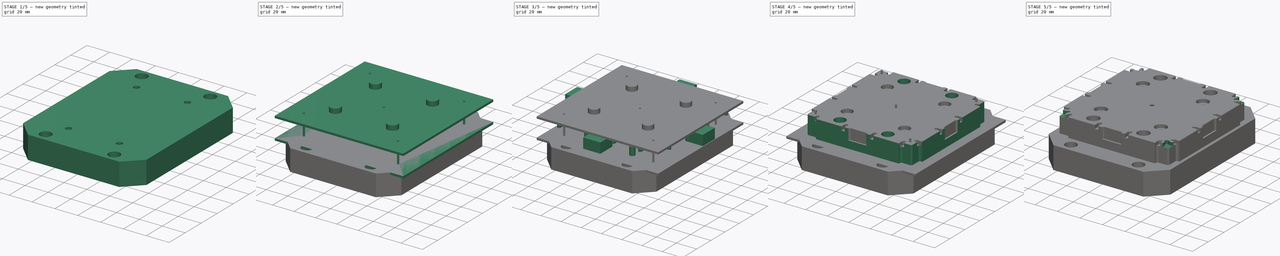
[diagram: build sequence overview — one tinted view per stage of 5, left to right]
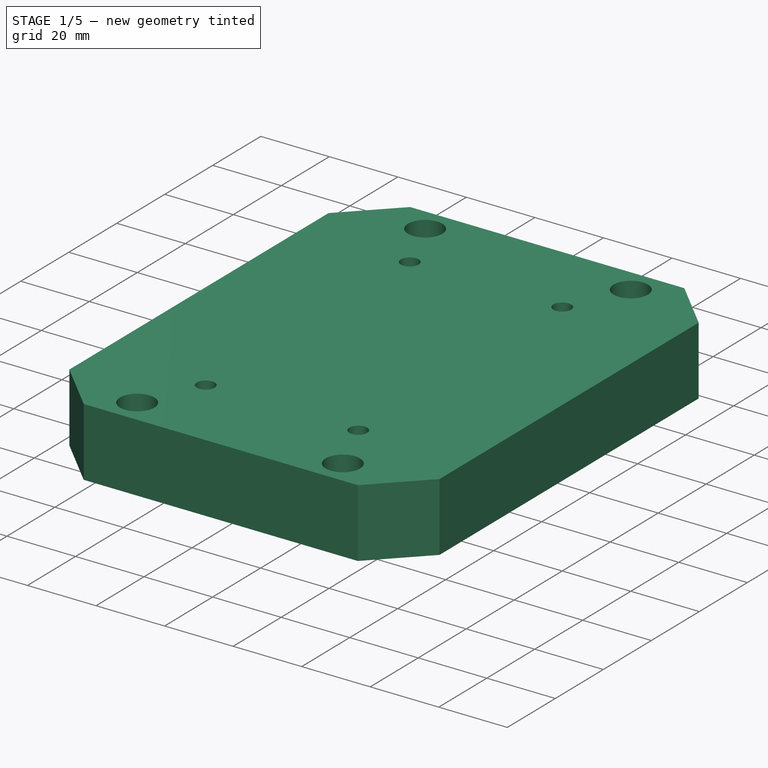
[diagram: stage 1 of 5 — iso view after this stage's code; geometry added in this stage tinted green]
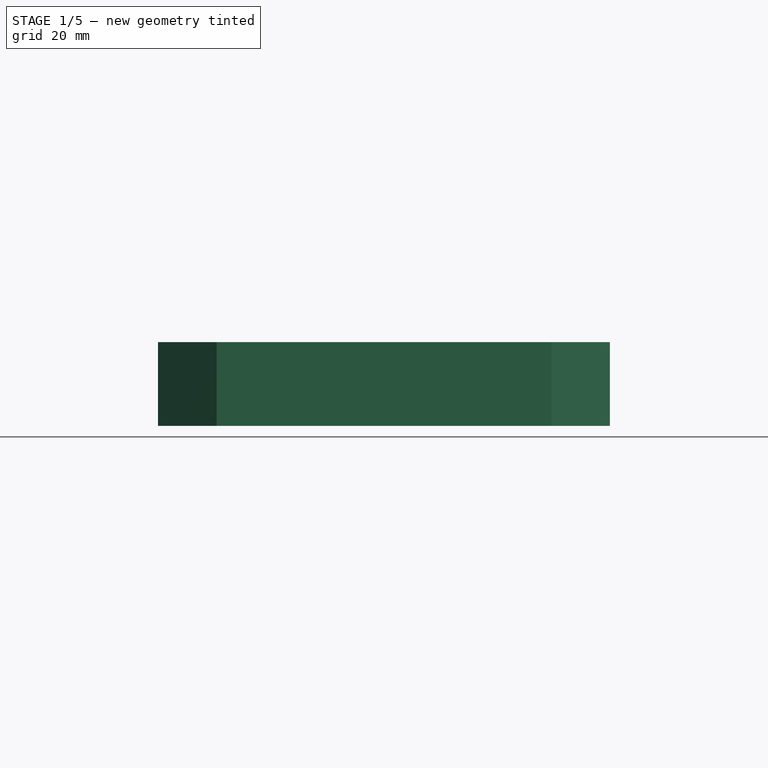
[diagram: stage 1 of 5 — front view after this stage's code; geometry added in this stage tinted green]
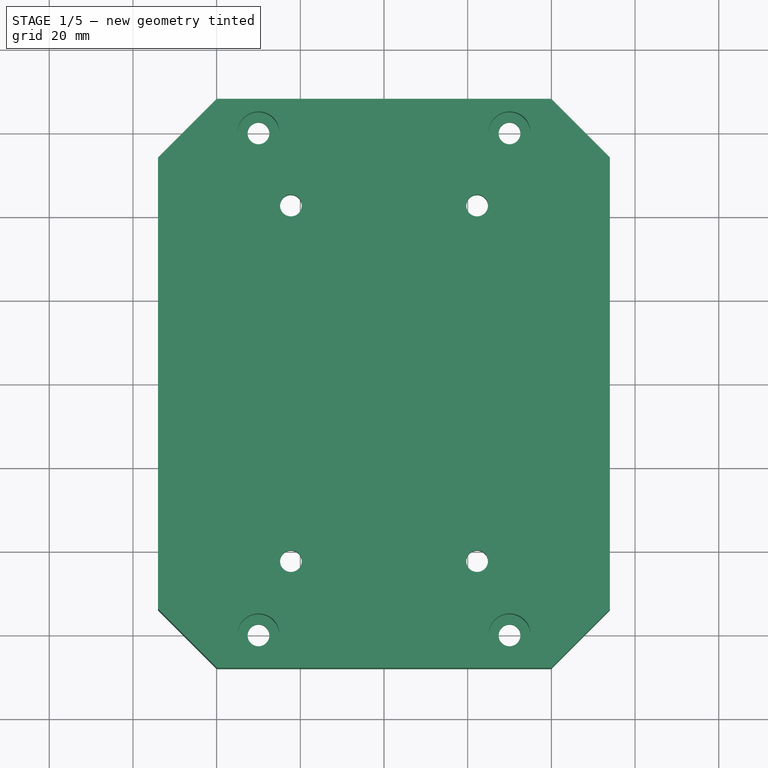
[diagram: stage 1 of 5 — top view after this stage's code; geometry added in this stage tinted green]
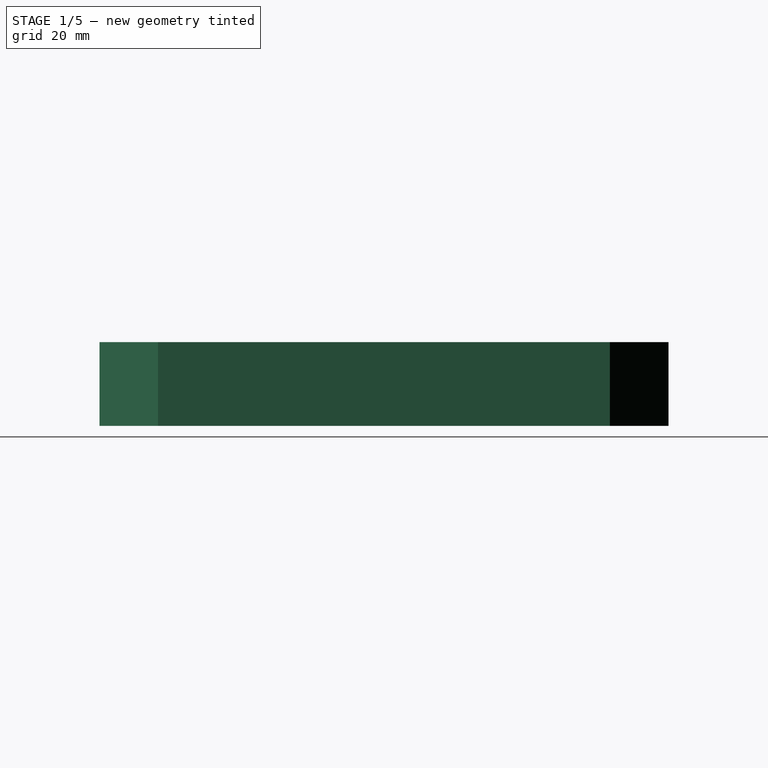
[diagram: stage 1 of 5 — right view after this stage's code; geometry added in this stage tinted green]
FCSTD DOCUMENT  (FreeCAD 0.19R24276 (Git))
Label: routing_template_alu_cnc
License: All rights reserved
LicenseURL: http://en.wikipedia.org/wiki/All_rights_reserved
objects: Sketcher::SketchObject×20, PartDesign::Pad×16, PartDesign::Body×8, PartDesign::Boolean×6, PartDesign::PolarPattern×3, PartDesign::Hole×2, PartDesign::Pocket×2, App::VRMLObject×1, App::Part×1, PartDesign::Chamfer×1, PartDesign::Fillet×1
note: 81 computed .brp shape members not serialized (recipe doc carries the construction recipe); baked Part::Feature solids carry a one-line shape summary decoded from their .brp

FEATURE [PartDesign::Body] Body  label="Base"
  Group = -> [Sketch001,Pad,Boolean,Boolean003,Boolean004,Boolean006,Boolean007,Boolean008,Chamfer]
  Origin = -> Origin
  Tip = -> Chamfer
FEATURE [Sketcher::SketchObject] Sketch019
  FullyConstrained = true
  MapMode = 5
  Support = -> [XY_Plane008]
  sketch-geometry (13):
    g0: LineSegment StartX=54 StartY=54 StartZ=0 EndX=54 EndY=-54 EndZ=0
    g1: LineSegment StartX=-54 StartY=-54 StartZ=0 EndX=-54 EndY=54 EndZ=0
    g2: LineSegment StartX=-54 StartY=54 StartZ=0 EndX=-40 EndY=68 EndZ=0
    g3: LineSegment StartX=-40 StartY=68 StartZ=0 EndX=40 EndY=68 EndZ=0
    g4: LineSegment StartX=40 StartY=68 StartZ=0 EndX=54 EndY=54 EndZ=0
    g5: LineSegment StartX=-54 StartY=-54 StartZ=0 EndX=-40 EndY=-68 EndZ=0
    g6: LineSegment StartX=-40 StartY=-68 StartZ=0 EndX=40 EndY=-68 EndZ=0
    g7: LineSegment StartX=40 StartY=-68 StartZ=0 EndX=54 EndY=-54 EndZ=0
    g8: LineSegment StartX=-54 StartY=54 StartZ=0 EndX=54 EndY=54 EndZ=0
    g9: LineSegment StartX=-54 StartY=-54 StartZ=0 EndX=54 EndY=-54 EndZ=0
    g10: LineSegment StartX=0 StartY=0 StartZ=0 EndX=-54 EndY=54 EndZ=0
    g11: LineSegment StartX=0 StartY=0 StartZ=0 EndX=54 EndY=54 EndZ=0
    g12: LineSegment StartX=0 StartY=0 StartZ=0 EndX=-54 EndY=-54 EndZ=0
  constraints (34):
    c: Vertical(g0)
    c: Vertical(g1)
    c: Coincident(g2,g1)
    c: Coincident(g2,g3)
    c: Horizontal(g3)
    c: Coincident(g3,g4)
    c: Coincident(g4,g0)
    c: Coincident(g1,g5)
    c: Coincident(g5,g6)
    c: Horizontal(g6)
    c: Coincident(g6,g7)
    c: Coincident(g7,g0)
    c: Coincident(g8,g1)
    c: Coincident(g8,g0)
    c: Horizontal(g8)
    c: Coincident(g9,g1)
    c: Coincident(g9,g0)
    c: Horizontal(g9)
    c: Coincident(g10,g-1)
    c: Coincident(g10,g1)
    c: Coincident(g11,g-1)
    c: Coincident(g11,g0)
    c: Coincident(g12,g-1)
    c: Coincident(g12,g1)
    c: Equal(g12,g10)
    c: Equal(g10,g11)
    c: Equal(g2,g4)
    c: Equal(g4,g5)
    c: Equal(g5,g7)
    c: Equal(g6,g3)
    c: DistanceX(g8,g8) = 108
    c: DistanceY(g1,g1) = 108
    c: DistanceY(g5,g2) = 136
    c: DistanceX(g3,g3) = 80
FEATURE [PartDesign::Pad] Pad016
  Direction = (1,1,1)
  Length = 20
  Length2 = 100
  Profile = -> Sketch019
  Reversed = true
  Type = 0
FEATURE [Sketcher::SketchObject] Sketch020
  FullyConstrained = true
  MapMode = 5
  Support = -> [XY_Plane008]
  sketch-geometry (11):
    g0: LineSegment StartX=-30 StartY=60 StartZ=0 EndX=30 EndY=60 EndZ=0
    g1: LineSegment StartX=30 StartY=60 StartZ=0 EndX=30 EndY=-60 EndZ=0
    g2: LineSegment StartX=30 StartY=-60 StartZ=0 EndX=-30 EndY=-60 EndZ=0
    g3: LineSegment StartX=-30 StartY=-60 StartZ=0 EndX=-30 EndY=60 EndZ=0
    g4: LineSegment StartX=-30 StartY=-60 StartZ=0 EndX=0 EndY=0 EndZ=0
    g5: LineSegment StartX=0 StartY=0 StartZ=0 EndX=-30 EndY=60 EndZ=0
    g6: LineSegment StartX=30 StartY=60 StartZ=0 EndX=0 EndY=0 EndZ=0
    g7: Circle CenterX=-30 CenterY=60 CenterZ=0 NormalX=0 NormalY=0 NormalZ=1 AngleXU=0 Radius=2
    g8: Circle CenterX=30 CenterY=60 CenterZ=0 NormalX=0 NormalY=0 NormalZ=1 AngleXU=0 Radius=2
    g9: Circle CenterX=30 CenterY=-60 CenterZ=0 NormalX=0 NormalY=0 NormalZ=1 AngleXU=0 Radius=2
    g10: Circle CenterX=-30 CenterY=-60 CenterZ=0 NormalX=0 NormalY=0 NormalZ=1 AngleXU=0 Radius=2
  constraints (26):
    c: Coincident(g0,g1)
    c: Coincident(g1,g2)
    c: Coincident(g2,g3)
    c: Coincident(g3,g0)
    c: Horizontal(g0)
    c: Horizontal(g2)
    c: Vertical(g1)
    c: Vertical(g3)
    c: Coincident(g2,g4)
    c: Coincident(g4,g-1)
    c: Coincident(g4,g5)
    c: Coincident(g5,g0)
    c: Coincident(g0,g6)
    c: Coincident(g6,g-1)
    c: Equal(g6,g5)
    c: Equal(g5,g4)
    c: DistanceX(g2,g2) = 60
    c: DistanceY(g3,g3) = 120
    c: Coincident(g0,g7)
    c: Coincident(g8,g0)
    c: Coincident(g9,g1)
    c: Coincident(g10,g2)
    c: Diameter(g10) = 4
    c: Equal(g10,g9)
    c: Equal(g10,g8)
    c: Equal(g10,g7)
FEATURE [PartDesign::Hole] Hole
  BaseFeature = -> Pad016
  Depth = 25
  DepthType = 0
  Diameter = 5.2
  DrillForDepth = false
  DrillPoint = 1
  DrillPointAngle = 118
  HoleCutCountersinkAngle = 90
  HoleCutCustomValues = false
  HoleCutDepth = 15
  HoleCutDiameter = 10
  HoleCutType = 1
  ModelActualThread = false
  Profile = -> Sketch020
  Tapered = false
  TaperedAngle = 90
  ThreadAngle = 0
  ThreadClass = 0
  ThreadCutOffInner = 0
  ThreadCutOffOuter = 0
  ThreadDirection = 0
  ThreadFit = 0
  ThreadPitch = 0
  ThreadSize = 0
  ThreadType = 0
  Threaded = false
FEATURE [Sketcher::SketchObject] Sketch021
  FullyConstrained = true
  MapMode = 5
  Support = -> [XY_Plane008]
  sketch-geometry (11):
    g0: LineSegment StartX=-22.25 StartY=42.5 StartZ=0 EndX=22.25 EndY=42.5 EndZ=0
    g1: LineSegment StartX=22.25 StartY=42.5 StartZ=0 EndX=22.25 EndY=-42.5 EndZ=0
    g2: LineSegment StartX=22.25 StartY=-42.5 StartZ=0 EndX=-22.25 EndY=-42.5 EndZ=0
    g3: LineSegment StartX=-22.25 StartY=-42.5 StartZ=0 EndX=-22.25 EndY=42.5 EndZ=0
    g4: LineSegment StartX=-22.25 StartY=-42.5 StartZ=0 EndX=0 EndY=0 EndZ=0
    g5: LineSegment StartX=0 StartY=0 StartZ=0 EndX=-22.25 EndY=42.5 EndZ=0
    g6: LineSegment StartX=22.25 StartY=42.5 StartZ=0 EndX=0 EndY=0 EndZ=0
    g7: Circle CenterX=-22.25 CenterY=42.5 CenterZ=0 NormalX=0 NormalY=0 NormalZ=1 AngleXU=0 Radius=2
    g8: Circle CenterX=22.25 CenterY=42.5 CenterZ=0 NormalX=0 NormalY=0 NormalZ=1 AngleXU=0 Radius=2
    g9: Circle CenterX=22.25 CenterY=-42.5 CenterZ=0 NormalX=0 NormalY=0 NormalZ=1 AngleXU=0 Radius=2
    g10: Circle CenterX=-22.25 CenterY=-42.5 CenterZ=0 NormalX=0 NormalY=0 NormalZ=1 AngleXU=0 Radius=2
  constraints (26):
    c: Coincident(g0,g1)
    c: Coincident(g1,g2)
    c: Coincident(g2,g3)
    c: Coincident(g3,g0)
    c: Horizontal(g0)
    c: Horizontal(g2)
    c: Vertical(g1)
    c: Vertical(g3)
    c: Coincident(g2,g4)
    c: Coincident(g4,g-1)
    c: Coincident(g4,g5)
    c: Coincident(g5,g0)
    c: Coincident(g0,g6)
    c: Coincident(g6,g-1)
    c: Equal(g6,g5)
    c: Equal(g5,g4)
    c: DistanceX(g2,g2) = 44.5
    c: DistanceY(g3,g3) = 85
    c: Coincident(g0,g7)
    c: Coincident(g8,g0)
    c: Coincident(g9,g1)
    c: Coincident(g10,g2)
    c: Diameter(g10) = 4
    c: Equal(g10,g9)
    c: Equal(g10,g8)
    c: Equal(g10,g7)
FEATURE [PartDesign::Hole] Hole001
  BaseFeature = -> Hole
  Depth = 25
  DepthType = 0
  Diameter = 5.2
  DrillForDepth = false
  DrillPoint = 1
  DrillPointAngle = 118
  HoleCutCountersinkAngle = 90
  HoleCutCustomValues = false
  HoleCutDepth = 0
  HoleCutDiameter = 6.1
  HoleCutType = 0
  ModelActualThread = false
  Profile = -> Sketch021
  Tapered = false
  TaperedAngle = 90
  ThreadAngle = 0
  ThreadClass = 0
  ThreadCutOffInner = 0
  ThreadCutOffOuter = 0
  ThreadDirection = 0
  ThreadFit = 0
  ThreadPitch = 0
  ThreadSize = 0
  ThreadType = 0
  Threaded = false
FEATURE [Sketcher::SketchObject] Sketch022
  ExternalGeometry = -> [Hole001]
  FullyConstrained = true
  MapMode = 5
  Placement = pos=(0,0,-20) rot=(1,0,0;3.14159rad)
  Support = -> [Hole001]
  sketch-geometry (28):
    g0: LineSegment StartX=-18.15 StartY=40.1329 StartZ=0 EndX=-18.15 EndY=44.8671 EndZ=0
    g1: LineSegment StartX=-18.15 StartY=44.8671 StartZ=0 EndX=-22.25 EndY=47.2343 EndZ=0
    g2: LineSegment StartX=-22.25 StartY=47.2343 StartZ=0 EndX=-26.35 EndY=44.8671 EndZ=0
    g3: LineSegment StartX=-26.35 StartY=44.8671 StartZ=0 EndX=-26.35 EndY=40.1329 EndZ=0
    g4: LineSegment StartX=-26.35 StartY=40.1329 StartZ=0 EndX=-22.25 EndY=37.7657 EndZ=0
    g5: LineSegment StartX=-22.25 StartY=37.7657 StartZ=0 EndX=-18.15 EndY=40.1329 EndZ=0
    g6: Circle CenterX=-22.25 CenterY=42.5 CenterZ=0 NormalX=0 NormalY=0 NormalZ=1 AngleXU=0 Radius=4.73427
    g7: LineSegment StartX=18.15 StartY=40.1329 StartZ=0 EndX=22.25 EndY=37.7657 EndZ=0
    g8: LineSegment StartX=22.25 StartY=37.7657 StartZ=0 EndX=26.35 EndY=40.1329 EndZ=0
    g9: LineSegment StartX=26.35 StartY=40.1329 StartZ=0 EndX=26.35 EndY=44.8671 EndZ=0
    g10: LineSegment StartX=26.35 StartY=44.8671 StartZ=0 EndX=22.25 EndY=47.2343 EndZ=0
    g11: LineSegment StartX=22.25 StartY=47.2343 StartZ=0 EndX=18.15 EndY=44.8671 EndZ=0
    g12: LineSegment StartX=18.15 StartY=44.8671 StartZ=0 EndX=18.15 EndY=40.1329 EndZ=0
    g13: Circle CenterX=22.25 CenterY=42.5 CenterZ=0 NormalX=0 NormalY=0 NormalZ=1 AngleXU=0 Radius=4.73427
    g14: LineSegment StartX=-18.15 StartY=-40.1329 StartZ=0 EndX=-22.25 EndY=-37.7657 EndZ=0
    g15: LineSegment StartX=-22.25 StartY=-37.7657 StartZ=0 EndX=-26.35 EndY=-40.1329 EndZ=0
    g16: LineSegment StartX=-26.35 StartY=-40.1329 StartZ=0 EndX=-26.35 EndY=-44.8671 EndZ=0
    g17: LineSegment StartX=-26.35 StartY=-44.8671 StartZ=0 EndX=-22.25 EndY=-47.2343 EndZ=0
    g18: LineSegment StartX=-22.25 StartY=-47.2343 StartZ=0 EndX=-18.15 EndY=-44.8671 EndZ=0
    g19: LineSegment StartX=-18.15 StartY=-44.8671 StartZ=0 EndX=-18.15 EndY=-40.1329 EndZ=0
    g20: Circle CenterX=-22.25 CenterY=-42.5 CenterZ=0 NormalX=0 NormalY=0 NormalZ=1 AngleXU=0 Radius=4.73427
    g21: LineSegment StartX=18.15 StartY=-40.1329 StartZ=0 EndX=18.15 EndY=-44.8671 EndZ=0
    g22: LineSegment StartX=18.15 StartY=-44.8671 StartZ=0 EndX=22.25 EndY=-47.2343 EndZ=0
    g23: LineSegment StartX=22.25 StartY=-47.2343 StartZ=0 EndX=26.35 EndY=-44.8671 EndZ=0
    g24: LineSegment StartX=26.35 StartY=-44.8671 StartZ=0 EndX=26.35 EndY=-40.1329 EndZ=0
    g25: LineSegment StartX=26.35 StartY=-40.1329 StartZ=0 EndX=22.25 EndY=-37.7657 EndZ=0
    g26: LineSegment StartX=22.25 StartY=-37.7657 StartZ=0 EndX=18.15 EndY=-40.1329 EndZ=0
    g27: Circle CenterX=22.25 CenterY=-42.5 CenterZ=0 NormalX=0 NormalY=0 NormalZ=1 AngleXU=0 Radius=4.73427
  constraints (64):
    c: Coincident(g0,g1)
    c: Coincident(g1,g2)
    c: Coincident(g2,g3)
    c: Coincident(g3,g4)
    c: Coincident(g4,g5)
    c: Coincident(g5,g0)
    c: Equal(g0, g1-g5) x5
    c: PointOnObject(g0,g6)
    c: PointOnObject(g1,g6)
    c: PointOnObject(g2,g6)
    c: PointOnObject(g3,g6)
    c: PointOnObject(g4,g6)
    c: PointOnObject(g5,g6)
    c: Coincident(g6,g-3)
    c: Coincident(g7,g8)
    c: Coincident(g8,g9)
    c: Coincident(g9,g10)
    c: Coincident(g10,g11)
    c: Coincident(g11,g12)
    c: Coincident(g12,g7)
    c: Equal(g7, g8-g12) x5
    c: PointOnObject(g7,g13)
    c: PointOnObject(g8,g13)
    c: PointOnObject(g9,g13)
    c: PointOnObject(g10,g13)
    c: PointOnObject(g11,g13)
    c: PointOnObject(g12,g13)
    c: Coincident(g13,g-4)
    c: Coincident(g14,g15)
    c: Coincident(g15,g16)
    c: Coincident(g16,g17)
    c: Coincident(g17,g18)
    c: Coincident(g18,g19)
    c: Coincident(g19,g14)
    c: Equal(g14, g15-g19) x5
    c: PointOnObject(g14,g20)
    c: PointOnObject(g15,g20)
    c: PointOnObject(g16,g20)
    c: PointOnObject(g17,g20)
    c: PointOnObject(g18,g20)
    c: PointOnObject(g19,g20)
    c: Coincident(g20,g-6)
    c: Coincident(g21,g22)
    c: Coincident(g22,g23)
    c: Coincident(g23,g24)
    c: Coincident(g24,g25)
    c: Coincident(g25,g26)
    c: Coincident(g26,g21)
    c: Equal(g21, g22-g26) x5
    c: PointOnObject(g21,g27)
    c: PointOnObject(g22,g27)
    c: PointOnObject(g23,g27)
    c: PointOnObject(g24,g27)
    c: PointOnObject(g25,g27)
    c: PointOnObject(g26,g27)
    c: Coincident(g27,g-5)
    c: Vertical(g21)
    c: Vertical(g19)
    c: Vertical(g0)
    c: Vertical(g12)
    c: Equal(g0,g12)
    c: Equal(g12,g21)
    c: Equal(g21,g19)
    c: DistanceX(g2,g0) = 8.2
FEATURE [PartDesign::Pocket] Pocket
  BaseFeature = -> Hole001
  Length = 10
  Length2 = 100
  Profile = -> Sketch022
  Type = 0
FEATURE [Sketcher::SketchObject] Sketch023
  FullyConstrained = true
  MapMode = 5
  Placement = pos=(0,0,-10) rot=(1,0,0;3.14159rad)
  Support = -> [Pocket]
  sketch-geometry (6):
    g0: LineSegment StartX=-23.75 StartY=-43 StartZ=0 EndX=-20.75 EndY=-43 EndZ=0
    g1: LineSegment StartX=-20.75 StartY=-43 StartZ=0 EndX=-20.75 EndY=-93 EndZ=0
    g2: LineSegment StartX=-20.75 StartY=-93 StartZ=0 EndX=-23.75 EndY=-93 EndZ=0
    g3: LineSegment StartX=-23.75 StartY=-93 StartZ=0 EndX=-23.75 EndY=-43 EndZ=0
    g4: LineSegment StartX=-23.75 StartY=-43 StartZ=0 EndX=-22.25 EndY=0 EndZ=0
    g5: LineSegment StartX=-22.25 StartY=0 StartZ=0 EndX=-20.75 EndY=-43 EndZ=0
  constraints (17):
    c: Coincident(g0,g1)
    c: Coincident(g1,g2)
    c: Coincident(g2,g3)
    c: Coincident(g3,g0)
    c: Horizontal(g0)
    c: Horizontal(g2)
    c: Vertical(g1)
    c: Vertical(g3)
    c: DistanceX(g0,g0) = 3
    c: Coincident(g0,g4)
    c: PointOnObject(g4,g-1)
    c: Coincident(g4,g5)
    c: Coincident(g5,g0)
    c: Equal(g4,g5)
    c: DistanceY(g0,g-1) = 43
    c: DistanceX(g4,g-1) = 22.25
    c: DistanceY(g3,g3) = 50
FEATURE [PartDesign::Pocket] Pocket001
  BaseFeature = -> Pocket
  Length = 3
  Length2 = 100
  Profile = -> Sketch023
  Reversed = true
  Type = 0
FEATURE [PartDesign::Fillet] Fillet
  Base = -> Pocket001 [Edge145,Edge143,Edge144,Edge148]
  BaseFeature = -> Pocket001
  Radius = 1.45
  SupportTransform = false
FEATURE [PartDesign::Body] Body007
  Group = -> [Sketch019,Pad016,Sketch020,Hole,Sketch021,Hole001,Sketch022,Pocket,Sketch023,Pocket001,Fillet]
  Origin = -> Origin008
  Tip = -> Fillet
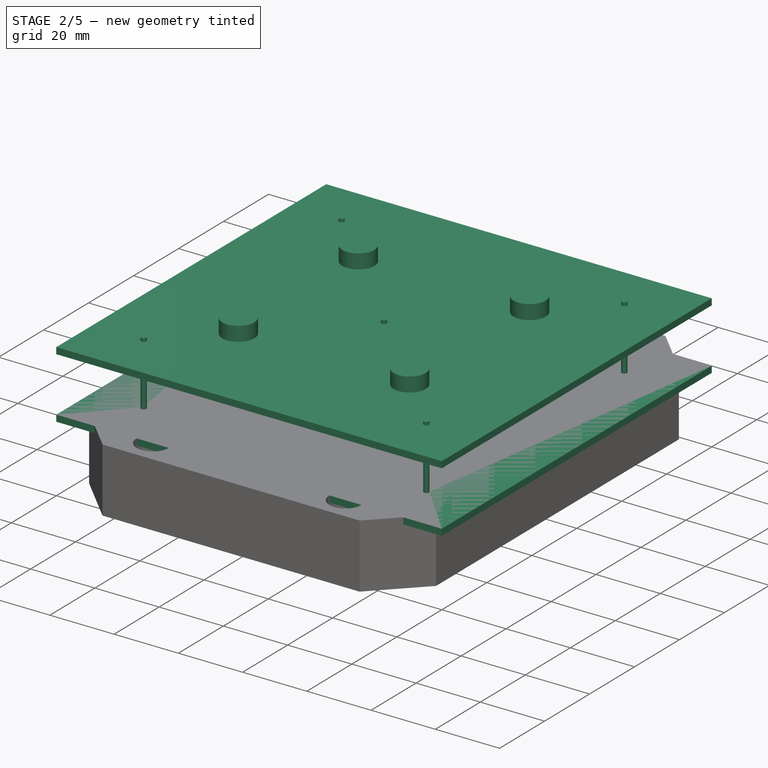
[diagram: stage 2 of 5 — iso view after this stage's code; geometry added in this stage tinted green]
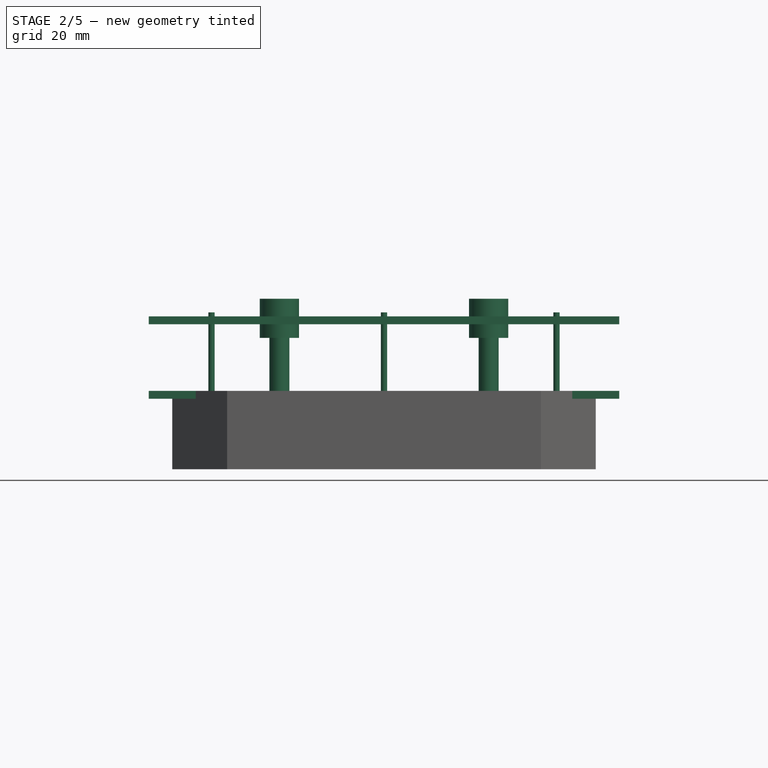
[diagram: stage 2 of 5 — front view after this stage's code; geometry added in this stage tinted green]
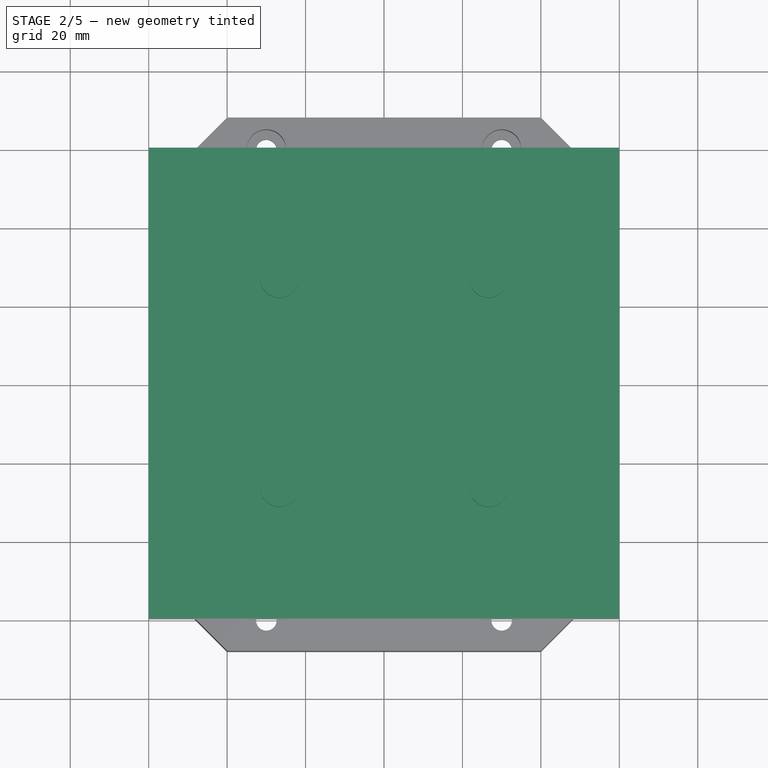
[diagram: stage 2 of 5 — top view after this stage's code; geometry added in this stage tinted green]
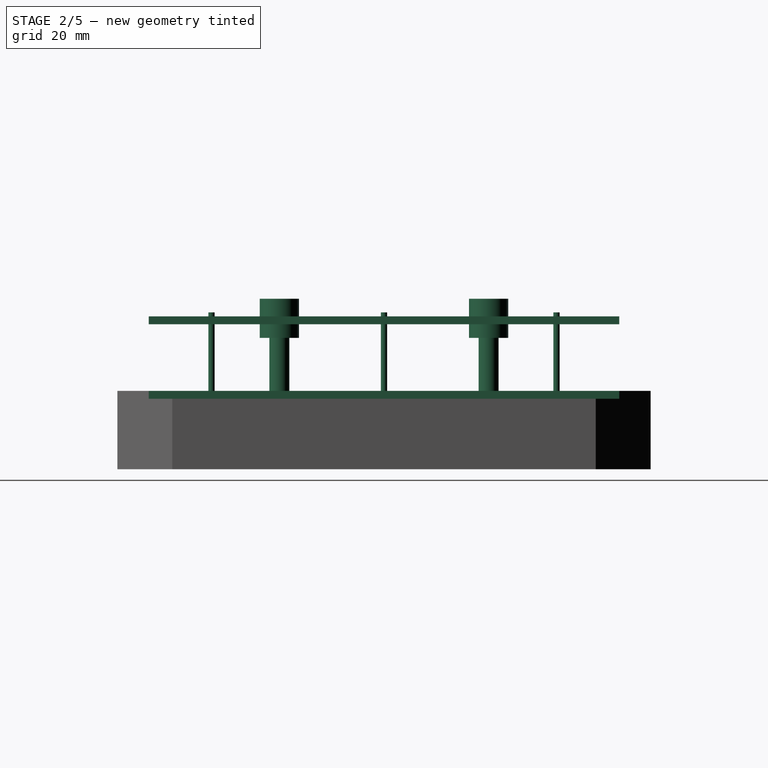
[diagram: stage 2 of 5 — right view after this stage's code; geometry added in this stage tinted green]
FEATURE [Sketcher::SketchObject] Sketch006
  FullyConstrained = false
  MapMode = 5
  Support = -> [XY_Plane002]
  sketch-geometry (5):
    g0: LineSegment StartX=-60 StartY=-60 StartZ=0 EndX=60 EndY=-60 EndZ=0
    g1: LineSegment StartX=60 StartY=-60 StartZ=0 EndX=60 EndY=60 EndZ=0
    g2: LineSegment StartX=60 StartY=60 StartZ=0 EndX=-60 EndY=60 EndZ=0
    g3: LineSegment StartX=-60 StartY=60 StartZ=0 EndX=-60 EndY=-60 EndZ=0
    g4: Circle CenterX=0 CenterY=0 CenterZ=0 NormalX=0 NormalY=0 NormalZ=1 AngleXU=0 Radius=84.8528
  constraints (14):
    c: Coincident(g0,g1)
    c: Coincident(g1,g2)
    c: Coincident(g2,g3)
    c: Coincident(g3,g0)
    c: Equal(g0,g1)
    c: Equal(g0,g2)
    c: Equal(g0,g3)
    c: PointOnObject(g0,g4)
    c: PointOnObject(g1,g4)
    c: PointOnObject(g2,g4)
    c: PointOnObject(g3,g4)
    c: Coincident(g4,g-1)
    c: Horizontal(g0)
    c: DistanceX(g0,g0) = 120
FEATURE [PartDesign::Pad] Pad004
  AllowMultiFace = false
  Direction = (1,1,1)
  Length = 2
  Length2 = 100
  Profile = -> Sketch006
  Reversed = true
  Type = 0
FEATURE [Sketcher::SketchObject] Sketch005
  FullyConstrained = false
  MapMode = 5
  Support = -> [Pad004]
  sketch-geometry (11):
    g0: LineSegment StartX=-26.67 StartY=26.67 StartZ=0 EndX=26.67 EndY=26.67 EndZ=0
    g1: LineSegment StartX=26.67 StartY=26.67 StartZ=0 EndX=26.67 EndY=-26.67 EndZ=0
    g2: LineSegment StartX=26.67 StartY=-26.67 StartZ=0 EndX=-26.67 EndY=-26.67 EndZ=0
    g3: LineSegment StartX=-26.67 StartY=-26.67 StartZ=0 EndX=-26.67 EndY=26.67 EndZ=0
    g4: Circle CenterX=-26.67 CenterY=26.67 CenterZ=0 NormalX=0 NormalY=0 NormalZ=1 AngleXU=0 Radius=2.55
    g5: Circle CenterX=26.67 CenterY=26.67 CenterZ=0 NormalX=0 NormalY=0 NormalZ=1 AngleXU=0 Radius=2.55
    g6: Circle CenterX=-26.67 CenterY=-26.67 CenterZ=0 NormalX=0 NormalY=0 NormalZ=1 AngleXU=0 Radius=2.55
    g7: Circle CenterX=26.67 CenterY=-26.67 CenterZ=0 NormalX=0 NormalY=0 NormalZ=1 AngleXU=0 Radius=2.55
    g8: LineSegment StartX=-26.67 StartY=26.67 StartZ=0 EndX=0 EndY=0 EndZ=0
    g9: LineSegment StartX=0 StartY=0 StartZ=0 EndX=26.67 EndY=26.67 EndZ=0
    g10: LineSegment StartX=0 StartY=0 StartZ=0 EndX=-26.67 EndY=-26.67 EndZ=0
  constraints (26):
    c: Coincident(g0,g1)
    c: Coincident(g1,g2)
    c: Coincident(g2,g3)
    c: Coincident(g3,g0)
    c: Horizontal(g0)
    c: Horizontal(g2)
    c: Vertical(g1)
    c: Vertical(g3)
    c: Coincident(g4,g0)
    c: Coincident(g5,g0)
    c: Coincident(g6,g2)
    c: Coincident(g7,g1)
    c: Equal(g5,g4)
    c: Equal(g4,g6)
    c: Equal(g6,g7)
    c: Coincident(g8,g4)
    c: Coincident(g8,g-1)
    c: Coincident(g8,g9)
    c: Coincident(g9,g5)
    c: Coincident(g-1,g10)
    c: Coincident(g10,g6)
    c: Equal(g10,g8)
    c: Equal(g8,g9)
    c: Diameter(g4) = 5.1
    c: Equal(g0,g3)
    c: DistanceX(g0,g0) = 53.34
FEATURE [PartDesign::Pad] Pad005
  AllowMultiFace = false
  BaseFeature = -> Pad004
  Direction = (1,1,1)
  Length = 13.5
  Length2 = 100
  Profile = -> Sketch005
  Type = 0
FEATURE [Sketcher::SketchObject] Sketch007
  FullyConstrained = false
  MapMode = 5
  Support = -> [XY_Plane003]
  sketch-geometry (5):
    g0: LineSegment StartX=-60 StartY=-60 StartZ=0 EndX=60 EndY=-60 EndZ=0
    g1: LineSegment StartX=60 StartY=-60 StartZ=0 EndX=60 EndY=60 EndZ=0
    g2: LineSegment StartX=60 StartY=60 StartZ=0 EndX=-60 EndY=60 EndZ=0
    g3: LineSegment StartX=-60 StartY=60 StartZ=0 EndX=-60 EndY=-60 EndZ=0
    g4: Circle CenterX=0 CenterY=0 CenterZ=0 NormalX=0 NormalY=0 NormalZ=1 AngleXU=0 Radius=84.8528
  constraints (14):
    c: Coincident(g0,g1)
    c: Coincident(g1,g2)
    c: Coincident(g2,g3)
    c: Coincident(g3,g0)
    c: Equal(g0,g1)
    c: Equal(g0,g2)
    c: Equal(g0,g3)
    c: PointOnObject(g0,g4)
    c: PointOnObject(g1,g4)
    c: PointOnObject(g2,g4)
    c: PointOnObject(g3,g4)
    c: Coincident(g4,g-1)
    c: Horizontal(g0)
    c: DistanceX(g0,g0) = 120
FEATURE [PartDesign::Pad] Pad006
  AllowMultiFace = false
  Direction = (1,1,1)
  Length = 2
  Length2 = 100
  Profile = -> Sketch007
  Reversed = true
  Type = 0
FEATURE [Sketcher::SketchObject] Sketch013
  AttachmentOffset = pos=(0,0,17) rot=(0,0,1;0rad)
  FullyConstrained = false
  MapMode = 5
  Placement = pos=(0,0,17) rot=(0,0,1;0rad)
  Support = -> [XY_Plane005]
  sketch-geometry (5):
    g0: LineSegment StartX=-60 StartY=60 StartZ=0 EndX=-60 EndY=-60 EndZ=0
    g1: LineSegment StartX=-60 StartY=-60 StartZ=0 EndX=60 EndY=-60 EndZ=0
    g2: LineSegment StartX=60 StartY=-60 StartZ=0 EndX=60 EndY=60 EndZ=0
    g3: LineSegment StartX=60 StartY=60 StartZ=0 EndX=-60 EndY=60 EndZ=0
    g4: Circle CenterX=0 CenterY=0 CenterZ=0 NormalX=0 NormalY=0 NormalZ=1 AngleXU=0 Radius=84.8528
  constraints (14):
    c: Coincident(g0,g1)
    c: Coincident(g1,g2)
    c: Coincident(g2,g3)
    c: Coincident(g3,g0)
    c: Equal(g0,g1)
    c: Equal(g0,g2)
    c: Equal(g0,g3)
    c: PointOnObject(g0,g4)
    c: PointOnObject(g1,g4)
    c: PointOnObject(g2,g4)
    c: PointOnObject(g3,g4)
    c: Coincident(g4,g-1)
    c: Horizontal(g3)
    c: DistanceX(g3,g3) = 120
FEATURE [PartDesign::Pad] Pad011
  AllowMultiFace = false
  Direction = (1,1,1)
  Length = 2
  Length2 = 100
  Profile = -> Sketch013
  Type = 0
FEATURE [PartDesign::Body] Body006  label="Canvas Corner"
  Group = -> [Sketch017,Pad013,Sketch016,Pad014,PolarPattern003]
  Origin = -> Origin006
  Tip = -> PolarPattern003
FEATURE [App::VRMLObject] touch_probe
FEATURE [App::Part] Part
  Group = -> [touch_probe]
  Origin = -> Origin007
  Placement = pos=(0,50.6,16.75) rot=(1,0,0;1.5708rad)
FEATURE [Sketcher::SketchObject] Sketch018
  ExternalGeometry = -> [Pad005]
  FullyConstrained = false
  MapMode = 5
  Placement = pos=(0,0,13.5) rot=(0,0,1;0rad)
  Support = -> [Pad005]
  sketch-geometry (4):
    g0: Circle CenterX=-26.67 CenterY=26.67 CenterZ=0 NormalX=0 NormalY=0 NormalZ=1 AngleXU=0 Radius=5
    g1: Circle CenterX=26.67 CenterY=26.67 CenterZ=0 NormalX=0 NormalY=0 NormalZ=1 AngleXU=0 Radius=5
    g2: Circle CenterX=26.67 CenterY=-26.67 CenterZ=0 NormalX=0 NormalY=0 NormalZ=1 AngleXU=0 Radius=5
    g3: Circle CenterX=-26.67 CenterY=-26.67 CenterZ=0 NormalX=0 NormalY=0 NormalZ=1 AngleXU=0 Radius=5
  constraints (8):
    c: Coincident(g0,g-3)
    c: Coincident(g1,g-4)
    c: Coincident(g2,g-5)
    c: Coincident(g3,g-6)
    c: Diameter(g3) = 10
    c: Equal(g3,g0)
    c: Equal(g3,g1)
    c: Equal(g3,g2)
FEATURE [PartDesign::Pad] Pad015
  AllowMultiFace = false
  BaseFeature = -> Pad005
  Direction = (1,1,1)
  Length = 10
  Length2 = 100
  Profile = -> Sketch018
  Type = 0
FEATURE [Sketcher::SketchObject] Sketch008
  FullyConstrained = false
  MapMode = 5
  Support = -> [Pad006]
  sketch-geometry (12):
    g0: LineSegment StartX=-44 StartY=44 StartZ=0 EndX=44 EndY=44 EndZ=0
    g1: LineSegment StartX=44 StartY=44 StartZ=0 EndX=44 EndY=-44 EndZ=0
    g2: LineSegment StartX=44 StartY=-44 StartZ=0 EndX=-44 EndY=-44 EndZ=0
    g3: LineSegment StartX=-44 StartY=-44 StartZ=0 EndX=-44 EndY=44 EndZ=0
    g4: Circle CenterX=-44 CenterY=44 CenterZ=0 NormalX=0 NormalY=0 NormalZ=1 AngleXU=0 Radius=0.8
    g5: Circle CenterX=44 CenterY=44 CenterZ=0 NormalX=0 NormalY=0 NormalZ=1 AngleXU=0 Radius=0.8
    g6: Circle CenterX=-44 CenterY=-44 CenterZ=0 NormalX=0 NormalY=0 NormalZ=1 AngleXU=0 Radius=0.8
    g7: Circle CenterX=44 CenterY=-44 CenterZ=0 NormalX=0 NormalY=0 NormalZ=1 AngleXU=0 Radius=0.8
    g8: LineSegment StartX=-44 StartY=44 StartZ=0 EndX=0 EndY=0 EndZ=0
    g9: LineSegment StartX=0 StartY=0 StartZ=0 EndX=44 EndY=44 EndZ=0
    g10: LineSegment StartX=0 StartY=0 StartZ=0 EndX=-44 EndY=-44 EndZ=0
    g11: Circle CenterX=0 CenterY=0 CenterZ=0 NormalX=0 NormalY=0 NormalZ=1 AngleXU=0 Radius=0.8
  constraints (28):
    c: Coincident(g0,g1)
    c: Coincident(g1,g2)
    c: Coincident(g2,g3)
    c: Coincident(g3,g0)
    c: Horizontal(g0)
    c: Horizontal(g2)
    c: Vertical(g1)
    c: Vertical(g3)
    c: Coincident(g4,g0)
    c: Coincident(g5,g0)
    c: Coincident(g6,g2)
    c: Coincident(g7,g1)
    c: Equal(g5,g4)
    c: Equal(g4,g6)
    c: Equal(g6,g7)
    c: Coincident(g8,g4)
    c: Coincident(g8,g-1)
    c: Coincident(g8,g9)
    c: Coincident(g9,g5)
    c: Coincident(g-1,g10)
    c: Coincident(g10,g6)
    c: Equal(g10,g8)
    c: Equal(g8,g9)
    c: Diameter(g4) = 1.6
    c: Equal(g0,g3)
    c: DistanceX(g0,g0) = 88
    c: Coincident(g11,g-1)
    c: Equal(g11,g4)
FEATURE [PartDesign::Pad] Pad007
  AllowMultiFace = false
  BaseFeature = -> Pad006
  Direction = (1,1,1)
  Length = 20
  Length2 = 100
  Profile = -> Sketch008
  Type = 0
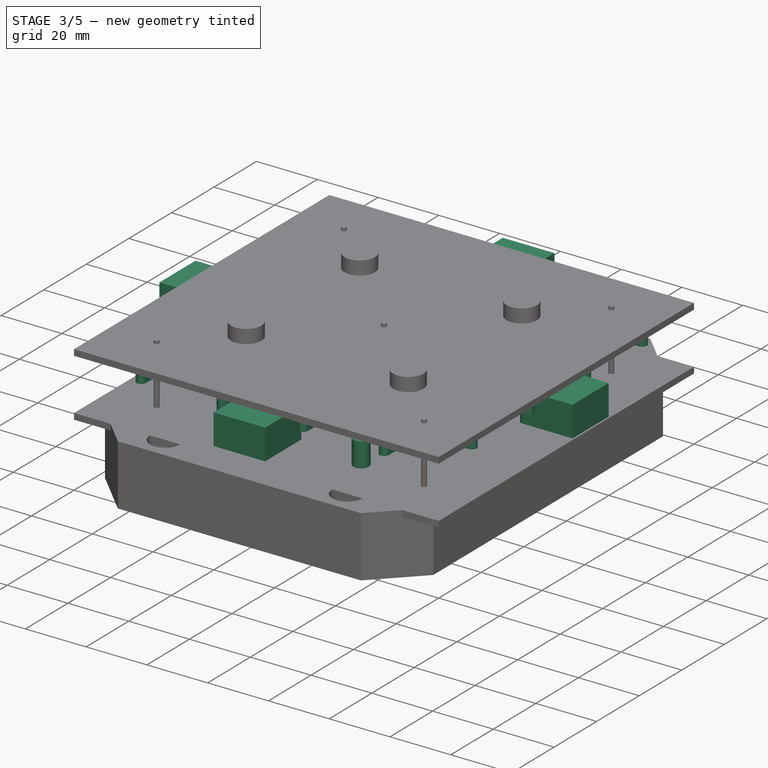
[diagram: stage 3 of 5 — iso view after this stage's code; geometry added in this stage tinted green]
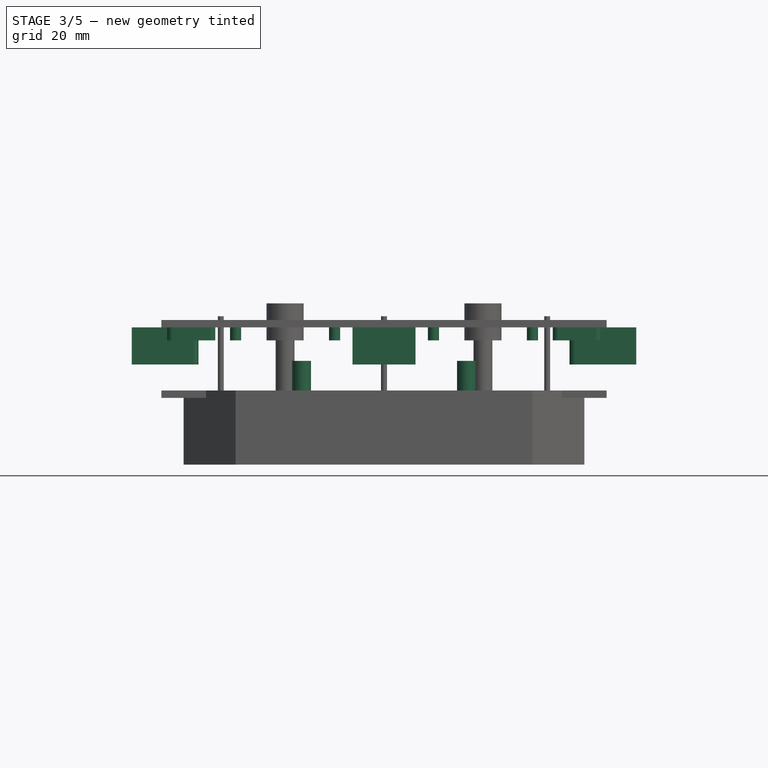
[diagram: stage 3 of 5 — front view after this stage's code; geometry added in this stage tinted green]
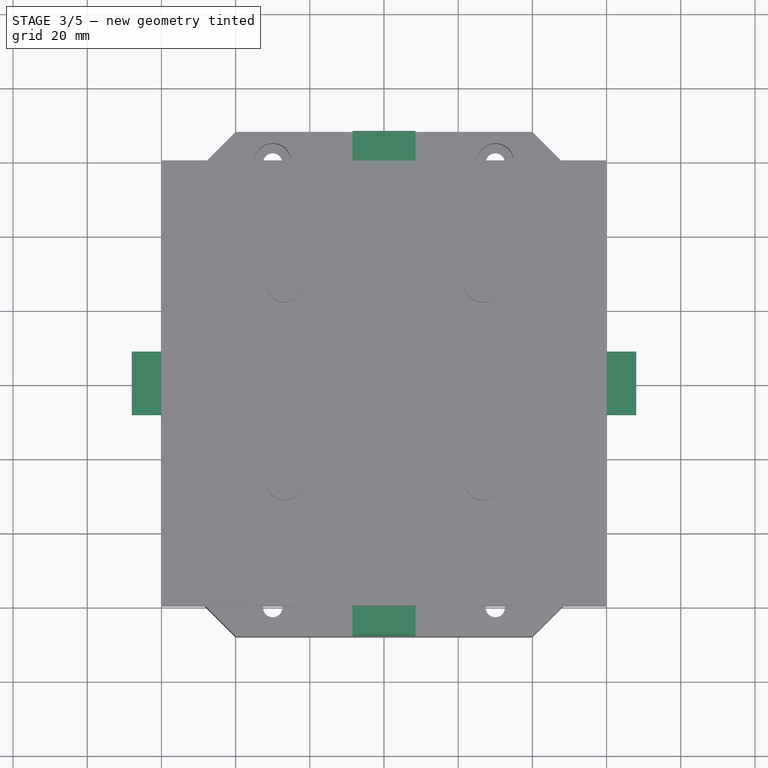
[diagram: stage 3 of 5 — top view after this stage's code; geometry added in this stage tinted green]
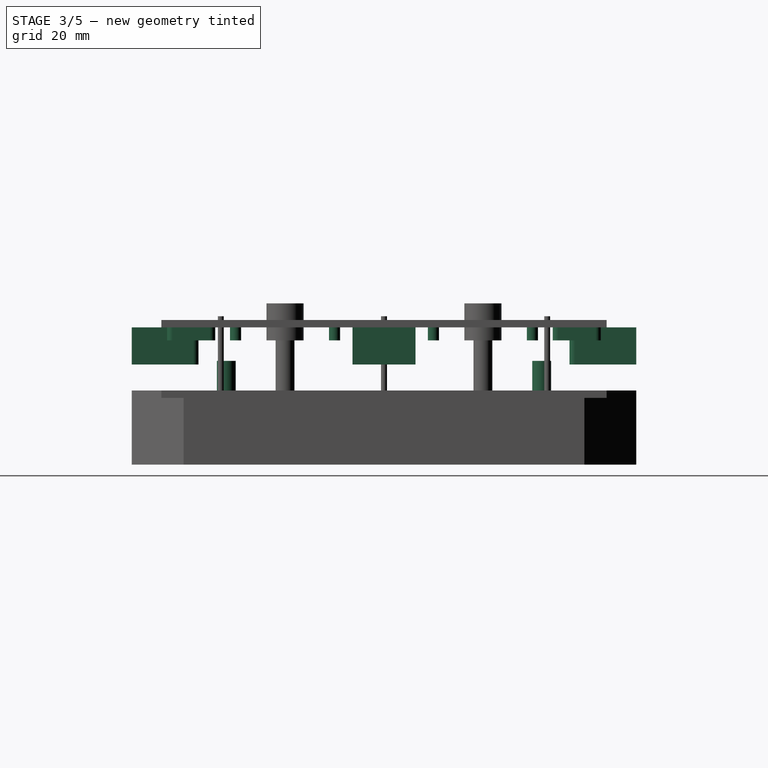
[diagram: stage 3 of 5 — right view after this stage's code; geometry added in this stage tinted green]
FEATURE [Sketcher::SketchObject] Sketch
  FullyConstrained = false
  MapMode = 5
  Support = -> [XY_Plane001]
  sketch-geometry (5):
    g0: LineSegment StartX=-60 StartY=-60 StartZ=0 EndX=60 EndY=-60 EndZ=0
    g1: LineSegment StartX=60 StartY=-60 StartZ=0 EndX=60 EndY=60 EndZ=0
    g2: LineSegment StartX=60 StartY=60 StartZ=0 EndX=-60 EndY=60 EndZ=0
    g3: LineSegment StartX=-60 StartY=60 StartZ=0 EndX=-60 EndY=-60 EndZ=0
    g4: Circle CenterX=0 CenterY=0 CenterZ=0 NormalX=0 NormalY=0 NormalZ=1 AngleXU=0 Radius=84.8528
  constraints (14):
    c: Coincident(g0,g1)
    c: Coincident(g1,g2)
    c: Coincident(g2,g3)
    c: Coincident(g3,g0)
    c: Equal(g0,g1)
    c: Equal(g0,g2)
    c: Equal(g0,g3)
    c: PointOnObject(g0,g4)
    c: PointOnObject(g1,g4)
    c: PointOnObject(g2,g4)
    c: PointOnObject(g3,g4)
    c: Coincident(g4,g-1)
    c: Horizontal(g0)
    c: DistanceX(g0,g0) = 120
FEATURE [PartDesign::Pad] Pad001
  AllowMultiFace = false
  Direction = (1,1,1)
  Length = 2
  Length2 = 100
  Profile = -> Sketch
  Reversed = true
  Type = 0
FEATURE [Sketcher::SketchObject] Sketch002
  FullyConstrained = false
  MapMode = 5
  Support = -> [Pad001]
  sketch-geometry (11):
    g0: LineSegment StartX=-22.225 StartY=42.5 StartZ=0 EndX=22.225 EndY=42.5 EndZ=0
    g1: LineSegment StartX=22.225 StartY=42.5 StartZ=0 EndX=22.225 EndY=-42.5 EndZ=0
    g2: LineSegment StartX=22.225 StartY=-42.5 StartZ=0 EndX=-22.225 EndY=-42.5 EndZ=0
    g3: LineSegment StartX=-22.225 StartY=-42.5 StartZ=0 EndX=-22.225 EndY=42.5 EndZ=0
    g4: Circle CenterX=-22.225 CenterY=42.5 CenterZ=0 NormalX=0 NormalY=0 NormalZ=1 AngleXU=0 Radius=2.55
    g5: Circle CenterX=22.225 CenterY=42.5 CenterZ=0 NormalX=0 NormalY=0 NormalZ=1 AngleXU=0 Radius=2.55
    g6: Circle CenterX=-22.225 CenterY=-42.5 CenterZ=0 NormalX=0 NormalY=0 NormalZ=1 AngleXU=0 Radius=2.55
    g7: Circle CenterX=22.225 CenterY=-42.5 CenterZ=0 NormalX=0 NormalY=0 NormalZ=1 AngleXU=0 Radius=2.55
    g8: LineSegment StartX=-22.225 StartY=42.5 StartZ=0 EndX=0 EndY=0 EndZ=0
    g9: LineSegment StartX=0 StartY=0 StartZ=0 EndX=22.225 EndY=42.5 EndZ=0
    g10: LineSegment StartX=0 StartY=0 StartZ=0 EndX=-22.225 EndY=-42.5 EndZ=0
  constraints (26):
    c: Coincident(g0,g1)
    c: Coincident(g1,g2)
    c: Coincident(g2,g3)
    c: Coincident(g3,g0)
    c: Horizontal(g0)
    c: Horizontal(g2)
    c: Vertical(g1)
    c: Vertical(g3)
    c: Coincident(g4,g0)
    c: Coincident(g5,g0)
    c: Coincident(g6,g2)
    c: Coincident(g7,g1)
    c: Equal(g5,g4)
    c: Equal(g4,g6)
    c: Equal(g6,g7)
    c: Coincident(g8,g4)
    c: Coincident(g8,g-1)
    c: Coincident(g8,g9)
    c: Coincident(g9,g5)
    c: Coincident(g-1,g10)
    c: Coincident(g10,g6)
    c: Equal(g10,g8)
    c: Equal(g8,g9)
    c: Diameter(g4) = 5.1
    c: DistanceX(g0,g0) = 44.45
    c: DistanceY(g3,g3) = 85
FEATURE [PartDesign::Pad] Pad002
  AllowMultiFace = false
  BaseFeature = -> Pad001
  Direction = (1,1,1)
  Length = 8
  Length2 = 100
  Profile = -> Sketch002
  Type = 0
FEATURE [Sketcher::SketchObject] Sketch010
  AttachmentOffset = pos=(0,0,17) rot=(0,0,1;0rad)
  FullyConstrained = false
  MapMode = 5
  Placement = pos=(0,0,17) rot=(0,0,1;0rad)
  Support = -> [XY_Plane004]
  sketch-geometry (5):
    g0: LineSegment StartX=-60 StartY=60 StartZ=0 EndX=-60 EndY=-60 EndZ=0
    g1: LineSegment StartX=-60 StartY=-60 StartZ=0 EndX=60 EndY=-60 EndZ=0
    g2: LineSegment StartX=60 StartY=-60 StartZ=0 EndX=60 EndY=60 EndZ=0
    g3: LineSegment StartX=60 StartY=60 StartZ=0 EndX=-60 EndY=60 EndZ=0
    g4: Circle CenterX=0 CenterY=0 CenterZ=0 NormalX=0 NormalY=0 NormalZ=1 AngleXU=0 Radius=84.8528
  constraints (14):
    c: Coincident(g0,g1)
    c: Coincident(g1,g2)
    c: Coincident(g2,g3)
    c: Coincident(g3,g0)
    c: Equal(g0,g1)
    c: Equal(g0,g2)
    c: Equal(g0,g3)
    c: PointOnObject(g0,g4)
    c: PointOnObject(g1,g4)
    c: PointOnObject(g2,g4)
    c: PointOnObject(g3,g4)
    c: Coincident(g4,g-1)
    c: Horizontal(g3)
    c: DistanceX(g3,g3) = 120
FEATURE [PartDesign::Pad] Pad009
  AllowMultiFace = false
  Direction = (1,1,1)
  Length = 2
  Length2 = 100
  Profile = -> Sketch010
  Type = 0
FEATURE [Sketcher::SketchObject] Sketch011
  FullyConstrained = false
  MapMode = 5
  Placement = pos=(0,0,17) rot=(1,0,0;3.14159rad)
  Support = -> [Pad009]
  sketch-geometry (21):
    g0: ArcOfCircle CenterX=-40.005 CenterY=47 CenterZ=0 NormalX=0 NormalY=0 NormalZ=1 AngleXU=0 Radius=1.5 StartAngle=3.14159 EndAngle=6.28319
    g1: ArcOfCircle CenterX=-40.005 CenterY=57 CenterZ=0 NormalX=0 NormalY=0 NormalZ=1 AngleXU=0 Radius=1.5 StartAngle=8e-16 EndAngle=3.14159
    g2: LineSegment StartX=-38.505 StartY=47 StartZ=0 EndX=-38.505 EndY=57 EndZ=0
    g3: LineSegment StartX=-41.505 StartY=47 StartZ=0 EndX=-41.505 EndY=57 EndZ=0
    g4: ArcOfCircle CenterX=-13.335 CenterY=47 CenterZ=0 NormalX=0 NormalY=0 NormalZ=1 AngleXU=0 Radius=1.5 StartAngle=3.14159 EndAngle=6.28319
    g5: ArcOfCircle CenterX=-13.335 CenterY=57 CenterZ=0 NormalX=0 NormalY=0 NormalZ=1 AngleXU=0 Radius=1.5 StartAngle=-9e-16 EndAngle=3.14159
    g6: LineSegment StartX=-11.835 StartY=47 StartZ=0 EndX=-11.835 EndY=57 EndZ=0
    g7: LineSegment StartX=-14.835 StartY=47 StartZ=0 EndX=-14.835 EndY=57 EndZ=0
    g8: ArcOfCircle CenterX=13.335 CenterY=47 CenterZ=0 NormalX=0 NormalY=0 NormalZ=1 AngleXU=0 Radius=1.5 StartAngle=3.14159 EndAngle=6.28319
    g9: ArcOfCircle CenterX=13.335 CenterY=57 CenterZ=0 NormalX=0 NormalY=0 NormalZ=1 AngleXU=0 Radius=1.5 StartAngle=1.9e-15 EndAngle=3.14159
    g10: LineSegment StartX=14.835 StartY=47 StartZ=0 EndX=14.835 EndY=57 EndZ=0
    g11: LineSegment StartX=11.835 StartY=47 StartZ=0 EndX=11.835 EndY=57 EndZ=0
    g12: ArcOfCircle CenterX=40.005 CenterY=47 CenterZ=0 NormalX=0 NormalY=0 NormalZ=1 AngleXU=0 Radius=1.5 StartAngle=3.14159 EndAngle=6.28319
    g13: ArcOfCircle CenterX=40.005 CenterY=57 CenterZ=0 NormalX=0 NormalY=0 NormalZ=1 AngleXU=0 Radius=1.5 StartAngle=1.9e-15 EndAngle=3.14159
    g14: LineSegment StartX=41.505 StartY=47 StartZ=0 EndX=41.505 EndY=57 EndZ=0
    g15: LineSegment StartX=38.505 StartY=47 StartZ=0 EndX=38.505 EndY=57 EndZ=0
    g16: LineSegment StartX=-40.005 StartY=47 StartZ=0 EndX=-13.335 EndY=47 EndZ=0
    g17: LineSegment StartX=13.335 StartY=47 StartZ=0 EndX=-13.335 EndY=47 EndZ=0
    g18: LineSegment StartX=13.335 StartY=47 StartZ=0 EndX=40.005 EndY=47 EndZ=0
    g19: LineSegment StartX=-13.335 StartY=47 StartZ=0 EndX=0 EndY=0 EndZ=0
    g20: LineSegment StartX=0 StartY=0 StartZ=0 EndX=13.335 EndY=47 EndZ=0
  constraints (50):
    c: Tangent(g0,g3) = 1.5708
    c: Tangent(g0,g2) = -1.5708
    c: Tangent(g2,g1) = -1.5708
    c: Tangent(g3,g1) = 1.5708
    c: Vertical(g2)
    c: Equal(g0,g1)
    c: Tangent(g4,g7) = 1.5708
    c: Tangent(g4,g6) = -1.5708
    c: Tangent(g6,g5) = -1.5708
    c: Tangent(g7,g5) = 1.5708
    c: Vertical(g6)
    c: Equal(g4,g5)
    c: Tangent(g8,g11) = 1.5708
    c: Tangent(g8,g10) = -1.5708
    c: Tangent(g10,g9) = -1.5708
    c: Tangent(g11,g9) = 1.5708
    c: Vertical(g10)
    c: Equal(g8,g9)
    c: Tangent(g12,g15) = 1.5708
    c: Tangent(g12,g14) = -1.5708
    c: Tangent(g14,g13) = -1.5708
    c: Tangent(g15,g13) = 1.5708
    c: Vertical(g14)
    c: Equal(g12,g13)
    c: Equal(g2,g6)
    c: Equal(g6,g10)
    c: Equal(g10,g14)
    c: Coincident(g16,g0)
    c: Coincident(g16,g4)
    c: Coincident(g17,g8)
    c: Coincident(g17,g4)
    c: Horizontal(g17)
    c: Coincident(g18,g8)
    c: Coincident(g18,g12)
    c: Horizontal(g18)
    c: Horizontal(g16)
    c: Equal(g16,g17)
    c: Equal(g17,g18)
    c: Equal(g0,g4)
    c: Equal(g4,g8)
    c: Equal(g8,g12)
    c: Coincident(g19,g4)
    c: Coincident(g19,g-1)
    c: Coincident(g19,g20)
    c: Coincident(g20,g8)
    c: Equal(g20,g19)
    c: DistanceX(g17,g17) = 26.67
    c: Diameter(g4) = 3
    c: DistanceY(g-1,g4) = 47
    c: DistanceY(g3,g3) = 10
FEATURE [PartDesign::Pad] Pad010
  AllowMultiFace = false
  BaseFeature = -> Pad009
  Direction = (1,1,1)
  Length = 3.5
  Length2 = 100
  Profile = -> Sketch011
  Type = 0
FEATURE [PartDesign::PolarPattern] PolarPattern
  Angle = 360
  Axis = -> Z_Axis004
  BaseFeature = -> Pad010
  Occurrences = 4
  Originals = -> [Pad010]
FEATURE [Sketcher::SketchObject] Sketch012
  FullyConstrained = false
  MapMode = 5
  Placement = pos=(0,0,17) rot=(1,0,0;3.14159rad)
  Support = -> [Pad011]
  sketch-geometry (8):
    g0: ArcOfCircle CenterX=-7 CenterY=51.5 CenterZ=0 NormalX=0 NormalY=0 NormalZ=1 AngleXU=0 Radius=1.5 StartAngle=3.14159 EndAngle=4.71239
    g1: ArcOfCircle CenterX=7 CenterY=51.5 CenterZ=0 NormalX=0 NormalY=0 NormalZ=1 AngleXU=0 Radius=1.5 StartAngle=4.71239 EndAngle=6.28319
    g2: LineSegment StartX=-7 StartY=50 StartZ=0 EndX=7 EndY=50 EndZ=0
    g3: LineSegment StartX=-7 StartY=51.5 StartZ=0 EndX=-9e-16 EndY=0 EndZ=0
    g4: LineSegment StartX=0 StartY=0 StartZ=0 EndX=7 EndY=51.5 EndZ=0
    g5: LineSegment StartX=-8.5 StartY=51.5 StartZ=0 EndX=-8.5 EndY=67.9891 EndZ=0
    g6: LineSegment StartX=-8.5 StartY=67.9891 StartZ=0 EndX=8.5 EndY=67.9891 EndZ=0
    g7: LineSegment StartX=8.5 StartY=67.9891 StartZ=0 EndX=8.5 EndY=51.5 EndZ=0
  constraints (19):
    c: Tangent(g0,g2) = -1.5708
    c: Tangent(g2,g1) = -1.5708
    c: Horizontal(g2)
    c: Equal(g0,g1)
    c: Coincident(g3,g-1)
    c: Coincident(g3,g4)
    c: Equal(g4,g3)
    c: Diameter(g0) = 3
    c: Tangent(g0,g5) = 1.5708
    c: Coincident(g5,g6)
    c: Horizontal(g6)
    c: Coincident(g6,g7)
    c: Tangent(g7,g1) = 1.5708
    c: Vertical(g7)
    c: Vertical(g5)
    c: Coincident(g0,g3)
    c: Coincident(g1,g4)
    c: DistanceX(g0,g1) = 14
    c: DistanceY(g-1,g0) = 50
FEATURE [PartDesign::Pad] Pad012
  AllowMultiFace = false
  BaseFeature = -> Pad011
  Direction = (1,1,1)
  Length = 10
  Length2 = 100
  Profile = -> Sketch012
  Type = 0
FEATURE [PartDesign::PolarPattern] PolarPattern001
  Angle = 360
  Axis = -> Z_Axis005
  BaseFeature = -> Pad012
  Occurrences = 4
  Originals = -> [Pad012]
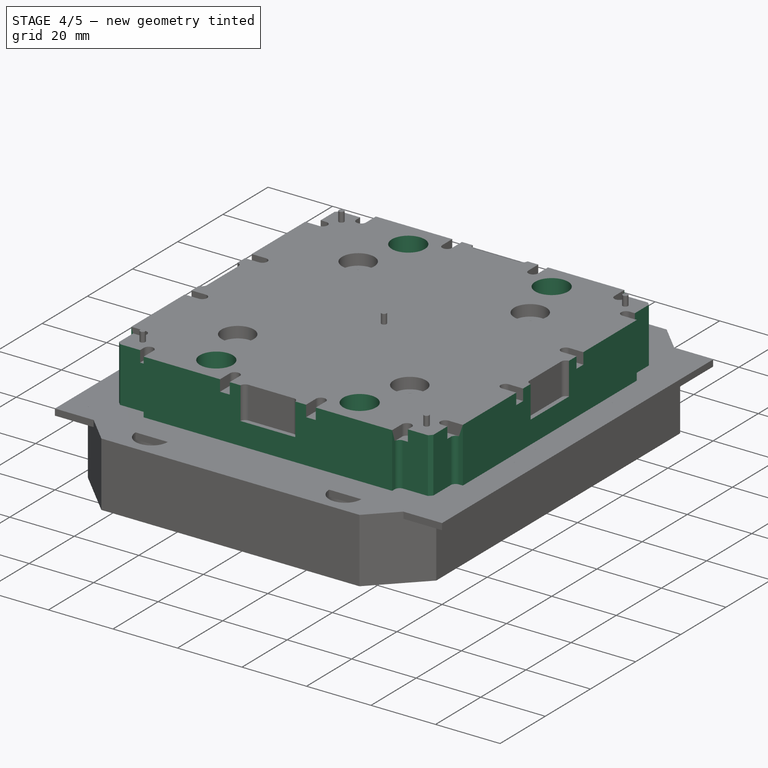
[diagram: stage 4 of 5 — iso view after this stage's code; geometry added in this stage tinted green]
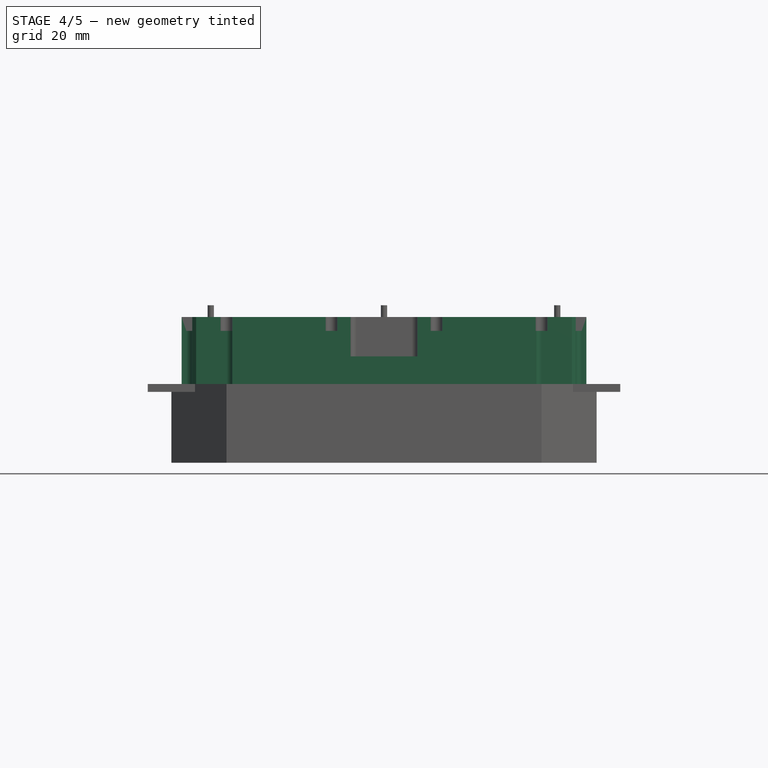
[diagram: stage 4 of 5 — front view after this stage's code; geometry added in this stage tinted green]
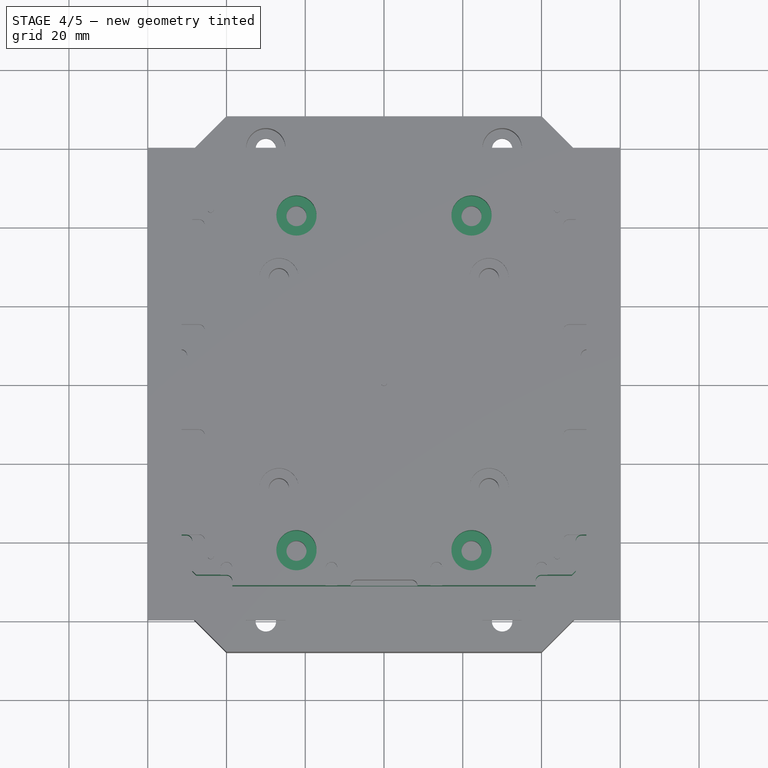
[diagram: stage 4 of 5 — top view after this stage's code; geometry added in this stage tinted green]
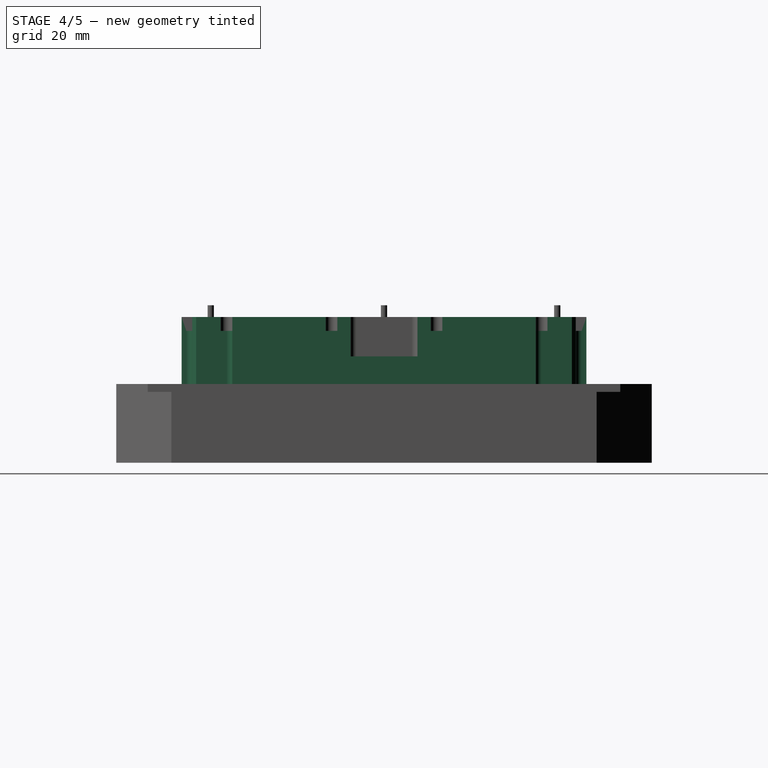
[diagram: stage 4 of 5 — right view after this stage's code; geometry added in this stage tinted green]
FEATURE [Sketcher::SketchObject] Sketch001
  FullyConstrained = false
  MapMode = 2
  Support = -> [XY_Plane]
  expr: Constraints[79] = 48.7 * 2
  expr: Constraints[16] = 51.4 * 2
  sketch-geometry (55):
    g0: LineSegment StartX=-38.505 StartY=51.4 StartZ=0 EndX=38.505 EndY=51.4 EndZ=0
    g1: LineSegment StartX=51.4 StartY=38.505 StartZ=0 EndX=51.4 EndY=-38.505 EndZ=0
    g2: LineSegment StartX=38.505 StartY=-51.4 StartZ=0 EndX=-38.505 EndY=-51.4 EndZ=0
    g3: LineSegment StartX=-51.4 StartY=-38.505 StartZ=0 EndX=-51.4 EndY=38.505 EndZ=0
    g4: ArcOfCircle CenterX=-38.505 CenterY=38.505 CenterZ=0 NormalX=0 NormalY=0 NormalZ=1 AngleXU=0 Radius=12.895 StartAngle=1.5708 EndAngle=3.14159
    g5: ArcOfCircle CenterX=38.505 CenterY=38.505 CenterZ=0 NormalX=0 NormalY=0 NormalZ=1 AngleXU=0 Radius=12.895 StartAngle=0 EndAngle=1.5708
    g6: ArcOfCircle CenterX=38.505 CenterY=-38.505 CenterZ=0 NormalX=0 NormalY=0 NormalZ=1 AngleXU=0 Radius=12.895 StartAngle=4.71239 EndAngle=6.28319
    g7: ArcOfCircle CenterX=-38.505 CenterY=-38.505 CenterZ=0 NormalX=0 NormalY=0 NormalZ=1 AngleXU=0 Radius=12.895 StartAngle=3.14159 EndAngle=4.71239
    g8: LineSegment StartX=-38.505 StartY=38.505 StartZ=0 EndX=0 EndY=0 EndZ=0
    g9: LineSegment StartX=0 StartY=0 StartZ=0 EndX=38.505 EndY=38.505 EndZ=0
    g10: LineSegment StartX=0 StartY=0 StartZ=0 EndX=-38.505 EndY=-38.505 EndZ=0
    g11: LineSegment StartX=-51.4 StartY=38.505 StartZ=0 EndX=-48.7 EndY=38.505 EndZ=0
    g12: LineSegment StartX=-48.7 StartY=38.505 StartZ=0 EndX=-48.7 EndY=47.7 EndZ=0
    g13: LineSegment StartX=-48.7 StartY=47.7 StartZ=0 EndX=-47.7 EndY=48.7 EndZ=0
    g14: LineSegment StartX=-47.7 StartY=48.7 StartZ=0 EndX=-38.505 EndY=48.7 EndZ=0
    g15: LineSegment StartX=-38.505 StartY=48.7 StartZ=0 EndX=-38.505 EndY=51.4 EndZ=0
    g16: LineSegment StartX=38.505 StartY=51.4 StartZ=0 EndX=38.505 EndY=48.7 EndZ=0
    g17: LineSegment StartX=38.505 StartY=48.7 StartZ=0 EndX=47.7 EndY=48.7 EndZ=0
    g18: LineSegment StartX=47.7 StartY=48.7 StartZ=0 EndX=48.7 EndY=47.7 EndZ=0
    g19: LineSegment StartX=48.7 StartY=47.7 StartZ=0 EndX=48.7 EndY=38.505 EndZ=0
    g20: LineSegment StartX=48.7 StartY=38.505 StartZ=0 EndX=51.4 EndY=38.505 EndZ=0
    g21: LineSegment StartX=51.4 StartY=-38.505 StartZ=0 EndX=48.7 EndY=-38.505 EndZ=0
    g22: LineSegment StartX=48.7 StartY=-38.505 StartZ=0 EndX=48.7 EndY=-47.7 EndZ=0
    g23: LineSegment StartX=48.7 StartY=-47.7 StartZ=0 EndX=47.7 EndY=-48.7 EndZ=0
    g24: LineSegment StartX=47.7 StartY=-48.7 StartZ=0 EndX=38.505 EndY=-48.7 EndZ=0
    g25: LineSegment StartX=38.505 StartY=-48.7 StartZ=0 EndX=38.505 EndY=-51.4 EndZ=0
    g26: LineSegment StartX=-51.4 StartY=-38.505 StartZ=0 EndX=-48.7 EndY=-38.505 EndZ=0
    g27: LineSegment StartX=-48.7 StartY=-38.505 StartZ=0 EndX=-48.7 EndY=-47.7 EndZ=0
    g28: LineSegment StartX=-48.7 StartY=-47.7 StartZ=0 EndX=-47.7 EndY=-48.7 EndZ=0
    g29: LineSegment StartX=-47.7 StartY=-48.7 StartZ=0 EndX=-38.505 EndY=-48.7 EndZ=0
    g30: LineSegment StartX=-38.505 StartY=-48.7 StartZ=0 EndX=-38.505 EndY=-51.4 EndZ=0
    g31: LineSegment StartX=-51.4 StartY=38.505 StartZ=0 EndX=-50.2 EndY=38.505 EndZ=0
    g32: LineSegment StartX=-48.7 StartY=40.005 StartZ=0 EndX=-48.7 EndY=47.7 EndZ=0
    g33: LineSegment StartX=-47.7 StartY=48.7 StartZ=0 EndX=-40.005 EndY=48.7 EndZ=0
    g34: LineSegment StartX=-38.505 StartY=50.2 StartZ=0 EndX=-38.505 EndY=51.4 EndZ=0
    g35: ArcOfCircle CenterX=-40.005 CenterY=50.2 CenterZ=0 NormalX=0 NormalY=0 NormalZ=1 AngleXU=0 Radius=1.5 StartAngle=4.71239 EndAngle=6.28319
    g36: ArcOfCircle CenterX=-50.2 CenterY=40.005 CenterZ=0 NormalX=0 NormalY=0 NormalZ=1 AngleXU=0 Radius=1.5 StartAngle=4.71239 EndAngle=6.28319
    g37: LineSegment StartX=38.505 StartY=51.4 StartZ=0 EndX=38.505 EndY=50.2 EndZ=0
    g38: LineSegment StartX=40.005 StartY=48.7 StartZ=0 EndX=47.7 EndY=48.7 EndZ=0
    g39: LineSegment StartX=48.7 StartY=47.7 StartZ=0 EndX=48.7 EndY=40.005 EndZ=0
    g40: LineSegment StartX=50.2 StartY=38.505 StartZ=0 EndX=51.4 EndY=38.505 EndZ=0
    g41: ArcOfCircle CenterX=40.005 CenterY=50.2 CenterZ=0 NormalX=0 NormalY=0 NormalZ=1 AngleXU=0 Radius=1.5 StartAngle=3.14159 EndAngle=4.71239
    g42: ArcOfCircle CenterX=50.2 CenterY=40.005 CenterZ=0 NormalX=0 NormalY=0 NormalZ=1 AngleXU=0 Radius=1.5 StartAngle=3.14159 EndAngle=4.71239
    g43: LineSegment StartX=48.7 StartY=-47.7 StartZ=0 EndX=48.7 EndY=-40.005 EndZ=0
    g44: LineSegment StartX=50.2 StartY=-38.505 StartZ=0 EndX=51.4 EndY=-38.505 EndZ=0
    g45: LineSegment StartX=47.7 StartY=-48.7 StartZ=0 EndX=40.005 EndY=-48.7 EndZ=0
    g46: LineSegment StartX=38.505 StartY=-50.2 StartZ=0 EndX=38.505 EndY=-51.4 EndZ=0
    g47: ArcOfCircle CenterX=50.2 CenterY=-40.005 CenterZ=0 NormalX=0 NormalY=0 NormalZ=1 AngleXU=0 Radius=1.5 StartAngle=1.5708 EndAngle=3.14159
    g48: ArcOfCircle CenterX=40.005 CenterY=-50.2 CenterZ=0 NormalX=0 NormalY=0 NormalZ=1 AngleXU=0 Radius=1.5 StartAngle=1.5708 EndAngle=3.14159
    g49: LineSegment StartX=-51.4 StartY=-38.505 StartZ=0 EndX=-50.2 EndY=-38.505 EndZ=0
    g50: LineSegment StartX=-48.7 StartY=-40.005 StartZ=0 EndX=-48.7 EndY=-47.7 EndZ=0
    g51: LineSegment StartX=-47.7 StartY=-48.7 StartZ=0 EndX=-40.005 EndY=-48.7 EndZ=0
    g52: LineSegment StartX=-38.505 StartY=-50.2 StartZ=0 EndX=-38.505 EndY=-51.4 EndZ=0
    g53: ArcOfCircle CenterX=-40.005 CenterY=-50.2 CenterZ=0 NormalX=0 NormalY=0 NormalZ=1 AngleXU=0 Radius=1.5 StartAngle=-1.8e-15 EndAngle=1.5708
    g54: ArcOfCircle CenterX=-50.2 CenterY=-40.005 CenterZ=0 NormalX=0 NormalY=0 NormalZ=1 AngleXU=0 Radius=1.5 StartAngle=1.9e-15 EndAngle=1.5708
  constraints (138):
    c: Horizontal(g0)
    c: Horizontal(g2)
    c: Vertical(g1)
    c: Vertical(g3)
    c: Tangent(g3,g4) = 1.5708
    c: Tangent(g0,g4) = 1.5708
    c: Tangent(g0,g5) = 1.5708
    c: Tangent(g1,g5) = 1.5708
    c: Tangent(g1,g6) = 1.5708
    c: Tangent(g2,g6) = 1.5708
    c: Tangent(g2,g7) = 1.5708
    c: Tangent(g3,g7) = 1.5708
    c: Equal(g7,g4)
    c: Equal(g4,g5)
    c: Equal(g5,g6)
    c: Equal(g0,g3)
    c: DistanceX(g3,g1) = 102.8
    c: Coincident(g8,g4)
    c: Coincident(g8,g-1)
    c: Coincident(g8,g9)
    c: Coincident(g9,g5)
    c: Coincident(g-1,g10)
    c: Coincident(g10,g7)
    c: Equal(g10,g8)
    c: Equal(g8,g9)
    c: Coincident(g3,g11)
    c: Horizontal(g11)
    c: Coincident(g11,g12)
    c: Vertical(g12)
    c: Coincident(g12,g13)
    c: Coincident(g13,g14)
    c: Horizontal(g14)
    c: Coincident(g14,g15)
    c: Coincident(g15,g0)
    c: Vertical(g15)
    c: Coincident(g16,g0)
    c: Vertical(g16)
    c: Coincident(g16,g17)
    c: Horizontal(g17)
    c: Coincident(g17,g18)
    c: Coincident(g18,g19)
    c: Vertical(g19)
    c: Coincident(g19,g20)
    c: Coincident(g20,g1)
    c: Horizontal(g20)
    c: Coincident(g1,g21)
    c: Horizontal(g21)
    c: Coincident(g21,g22)
    c: Coincident(g22,g23)
    c: Coincident(g23,g24)
    c: Horizontal(g24)
    c: Coincident(g24,g25)
    c: Coincident(g25,g2)
    c: Vertical(g25)
    c: Vertical(g22)
    c: Coincident(g3,g26)
    c: Horizontal(g26)
    c: Coincident(g26,g27)
    c: Vertical(g27)
    c: Coincident(g27,g28)
    c: Coincident(g28,g29)
    c: Horizontal(g29)
    c: Coincident(g29,g30)
    c: Coincident(g30,g2)
    c: Vertical(g30)
    c: Equal(g30,g26)
    c: Equal(g26,g11)
    c: Equal(g11,g15)
    c: Equal(g15,g16)
    c: Equal(g16,g20)
    c: Equal(g20,g21)
    c: Equal(g21,g25)
    c: Equal(g22,g24)
    c: Equal(g24,g29)
    c: Equal(g29,g27)
    c: Equal(g27,g12)
    c: Equal(g12,g14)
    c: Equal(g14,g17)
    c: Equal(g17,g19)
    c: DistanceX(g12,g18) = 97.4
    c: DistanceY(g12,g13) = 1
    c: DistanceX(g0,g0) = 77.01
    c: Coincident(g3,g31)
    c: Coincident(g32,g13)
    c: Coincident(g13,g33)
    c: Coincident(g34,g0)
    c: Tangent(g33,g35) = -1.5708
    c: Tangent(g34,g35) = -1.5708
    c: Tangent(g31,g36) = -1.5708
    c: Tangent(g32,g36) = -1.5708
    c: Horizontal(g33)
    c: Vertical(g34)
    c: Horizontal(g31)
    c: Vertical(g32)
    c: Coincident(g0,g37)
    c: Coincident(g38,g17)
    c: Coincident(g18,g39)
    c: Coincident(g40,g1)
    c: Tangent(g37,g41) = -1.5708
    c: Tangent(g38,g41) = -1.5708
    c: Tangent(g39,g42) = -1.5708
    c: Tangent(g40,g42) = -1.5708
    c: Horizontal(g38)
    c: Vertical(g37)
    c: Horizontal(g40)
    c: Vertical(g39)
    c: Coincident(g22,g43)
    c: Coincident(g44,g1)
    c: Coincident(g23,g45)
    c: Coincident(g46,g2)
    c: Tangent(g43,g47) = 1.5708
    c: Tangent(g44,g47) = 1.5708
    c: Tangent(g46,g48) = -1.5708
    c: Tangent(g45,g48) = -1.5708
    c: Vertical(g46)
    c: Horizontal(g45)
    c: Vertical(g43)
    c: Horizontal(g44)
    c: Coincident(g3,g49)
    c: Coincident(g50,g27)
    c: Vertical(g50)
    c: Coincident(g28,g51)
    c: Coincident(g52,g2)
    c: Tangent(g51,g53) = 1.5708
    c: Tangent(g52,g53) = 1.5708
    c: Tangent(g50,g54) = 1.5708
    c: Tangent(g49,g54) = 1.5708
    c: Horizontal(g49)
    c: Horizontal(g51)
    c: Vertical(g52)
    c: Radius(g53) = 1.5
    c: Equal(g53,g54)
    c: Equal(g53,g36)
    c: Equal(g53,g35)
    c: Equal(g53,g41)
    c: Equal(g53,g42)
    c: Equal(g53,g47)
    c: Equal(g53,g48)
FEATURE [PartDesign::Pad] Pad
  AllowMultiFace = false
  Direction = (1,1,1)
  Length = 17
  Length2 = 100
  Profile = -> Sketch001
  Type = 0
FEATURE [Sketcher::SketchObject] Sketch003
  ExternalGeometry = -> [Pad002]
  FullyConstrained = false
  MapMode = 5
  Placement = pos=(0,0,8) rot=(0,0,1;0rad)
  Support = -> [Pad002]
  sketch-geometry (4):
    g0: Circle CenterX=-22.225 CenterY=42.5 CenterZ=0 NormalX=0 NormalY=0 NormalZ=1 AngleXU=0 Radius=5.1
    g1: Circle CenterX=22.225 CenterY=42.5 CenterZ=0 NormalX=0 NormalY=0 NormalZ=1 AngleXU=0 Radius=5.1
    g2: Circle CenterX=-22.225 CenterY=-42.5 CenterZ=0 NormalX=0 NormalY=0 NormalZ=1 AngleXU=0 Radius=5.1
    g3: Circle CenterX=22.225 CenterY=-42.5 CenterZ=0 NormalX=0 NormalY=0 NormalZ=1 AngleXU=0 Radius=5.1
  constraints (8):
    c: Coincident(g0,g-3)
    c: Coincident(g1,g-4)
    c: Coincident(g2,g-6)
    c: Coincident(g3,g-5)
    c: Diameter(g3) = 10.2
    c: Equal(g3,g2)
    c: Equal(g3,g0)
    c: Equal(g3,g1)
FEATURE [PartDesign::Pad] Pad003
  AllowMultiFace = false
  BaseFeature = -> Pad002
  Direction = (1,1,1)
  Length = 12
  Length2 = 100
  Profile = -> Sketch003
  Type = 0
FEATURE [PartDesign::Body] Body001  label="Tooling Hole"
  Group = -> [Sketch,Pad001,Sketch002,Pad002,Sketch003,Pad003]
  Origin = -> Origin001
  Tip = -> Pad003
FEATURE [PartDesign::Boolean] Boolean  label="Cut: Tooling Hole"
  BaseFeature = -> Pad
  Group = -> [Body001]
  Refine = true
  Type = 1
FEATURE [PartDesign::Body] Body004  label="Canvas Rib"
  Group = -> [Sketch010,Pad009,Sketch011,Pad010,PolarPattern]
  Origin = -> Origin004
  Tip = -> PolarPattern
FEATURE [PartDesign::Boolean] Boolean003  label="Cut: Canvas Rib"
  BaseFeature = -> Boolean
  Group = -> [Body004]
  Refine = true
  Type = 1
FEATURE [PartDesign::Body] Body005  label="Canvas Usb"
  Group = -> [Sketch013,Pad011,Sketch012,Pad012,PolarPattern001]
  Origin = -> Origin005
  Tip = -> PolarPattern001
FEATURE [PartDesign::Boolean] Boolean004  label="Cut: Canvas Usb"
  BaseFeature = -> Boolean003
  Group = -> [Body005]
  Type = 1
FEATURE [PartDesign::Body] Body002  label="PCB Mounting Tube"
  Group = -> [Sketch006,Pad004,Sketch005,Pad005,Sketch018,Pad015]
  Origin = -> Origin002
  Tip = -> Pad015
FEATURE [PartDesign::Boolean] Boolean006  label="Cut: PCB Mounting Tube"
  BaseFeature = -> Boolean004
  Group = -> [Body002]
  Type = 1
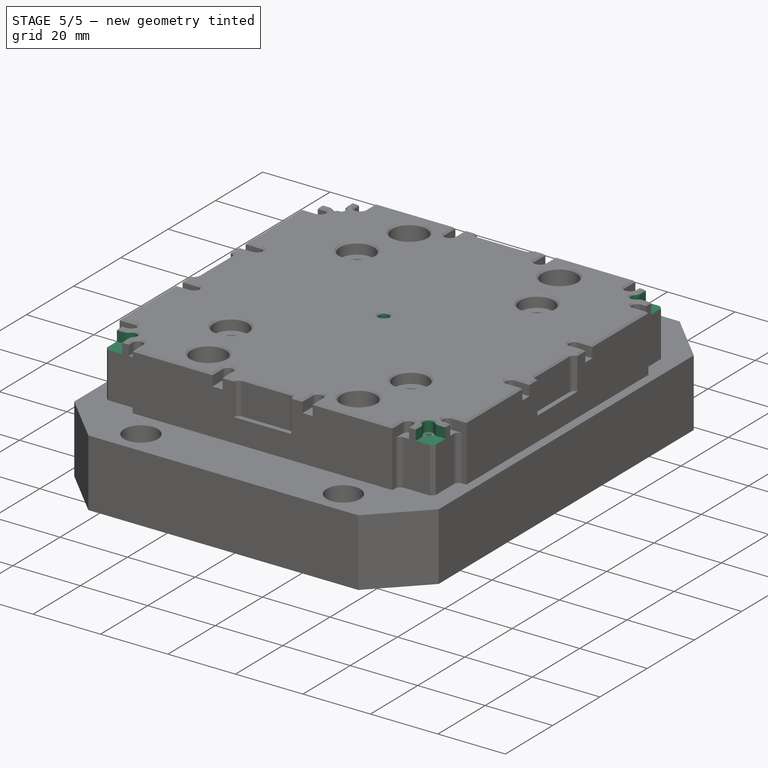
[diagram: stage 5 of 5 — iso view after this stage's code; geometry added in this stage tinted green]
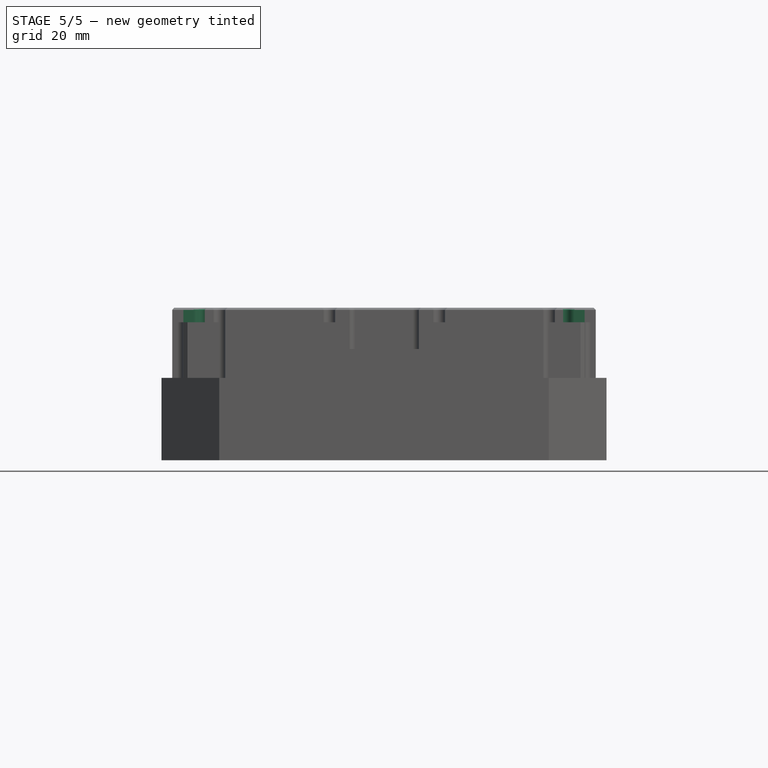
[diagram: stage 5 of 5 — front view after this stage's code; geometry added in this stage tinted green]
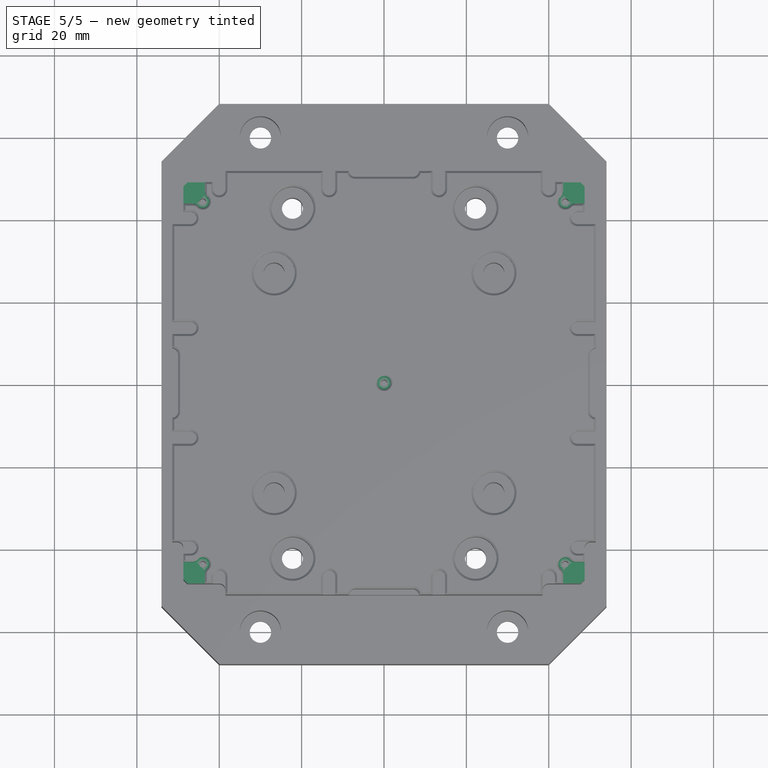
[diagram: stage 5 of 5 — top view after this stage's code; geometry added in this stage tinted green]
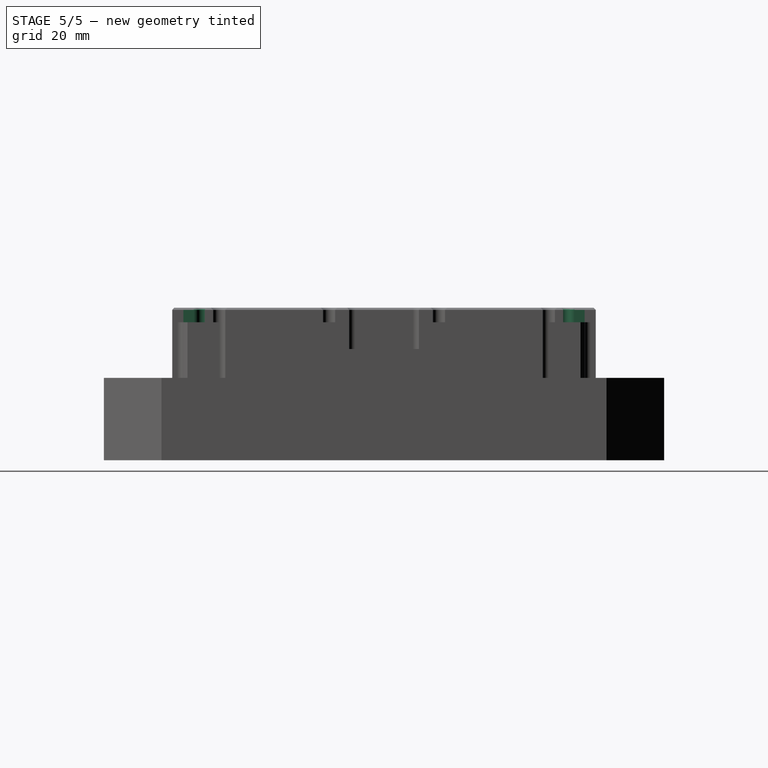
[diagram: stage 5 of 5 — right view after this stage's code; geometry added in this stage tinted green]
FEATURE [Sketcher::SketchObject] Sketch017
  AttachmentOffset = pos=(0,0,17) rot=(0,0,1;0rad)
  FullyConstrained = false
  MapMode = 5
  Placement = pos=(0,0,17) rot=(0,0,1;0rad)
  Support = -> [XY_Plane006]
  sketch-geometry (5):
    g0: LineSegment StartX=-60 StartY=60 StartZ=0 EndX=-60 EndY=-60 EndZ=0
    g1: LineSegment StartX=-60 StartY=-60 StartZ=0 EndX=60 EndY=-60 EndZ=0
    g2: LineSegment StartX=60 StartY=-60 StartZ=0 EndX=60 EndY=60 EndZ=0
    g3: LineSegment StartX=60 StartY=60 StartZ=0 EndX=-60 EndY=60 EndZ=0
    g4: Circle CenterX=0 CenterY=0 CenterZ=0 NormalX=0 NormalY=0 NormalZ=1 AngleXU=0 Radius=84.8528
  constraints (14):
    c: Coincident(g0,g1)
    c: Coincident(g1,g2)
    c: Coincident(g2,g3)
    c: Coincident(g3,g0)
    c: Equal(g0,g1)
    c: Equal(g0,g2)
    c: Equal(g0,g3)
    c: PointOnObject(g0,g4)
    c: PointOnObject(g1,g4)
    c: PointOnObject(g2,g4)
    c: PointOnObject(g3,g4)
    c: Coincident(g4,g-1)
    c: Horizontal(g3)
    c: DistanceX(g3,g3) = 120
FEATURE [PartDesign::Pad] Pad013
  AllowMultiFace = false
  Direction = (1,1,1)
  Length = 2
  Length2 = 100
  Profile = -> Sketch017
  Type = 0
FEATURE [Sketcher::SketchObject] Sketch016
  FullyConstrained = false
  MapMode = 5
  Placement = pos=(0,0,17) rot=(1,0,0;3.14159rad)
  Support = -> [Pad013]
  sketch-geometry (10):
    g0: LineSegment StartX=-60 StartY=60 StartZ=0 EndX=-43.5 EndY=60 EndZ=0
    g1: LineSegment StartX=-43.5 StartY=60 StartZ=0 EndX=-43.5 EndY=46.2361 EndZ=0
    g2: LineSegment StartX=-46.2361 StartY=43.5 StartZ=0 EndX=-60 EndY=43.5 EndZ=0
    g3: LineSegment StartX=-60 StartY=43.5 StartZ=0 EndX=-60 EndY=60 EndZ=0
    g4: LineSegment StartX=-60 StartY=43.5 StartZ=0 EndX=0 EndY=-7.1e-15 EndZ=0
    g5: LineSegment StartX=0 StartY=-7.1e-15 StartZ=0 EndX=-43.5 EndY=60 EndZ=0
    g6: ArcOfCircle CenterX=-46.2361 CenterY=42 CenterZ=0 NormalX=0 NormalY=0 NormalZ=1 AngleXU=0 Radius=1.5 StartAngle=0.729728 EndAngle=1.5708
    g7: ArcOfCircle CenterX=-42 CenterY=46.2361 CenterZ=0 NormalX=0 NormalY=0 NormalZ=1 AngleXU=0 Radius=1.5 StartAngle=3.14159 EndAngle=3.98266
    g8: ArcOfCircle CenterX=-44 CenterY=44 CenterZ=0 NormalX=0 NormalY=0 NormalZ=1 AngleXU=0 Radius=1.5 StartAngle=3.87132 EndAngle=7.12425
    g9: Circle CenterX=0 CenterY=0 CenterZ=0 NormalX=0 NormalY=0 NormalZ=1 AngleXU=0 Radius=1.5
  constraints (27):
    c: Coincident(g0,g1)
    c: Coincident(g2,g3)
    c: Coincident(g3,g0)
    c: Horizontal(g0)
    c: Horizontal(g2)
    c: Vertical(g1)
    c: Vertical(g3)
    c: Coincident(g4,g-1)
    c: Coincident(g4,g5)
    c: Coincident(g5,g0)
    c: Equal(g5,g4)
    c: Coincident(g2,g4)
    c: Equal(g2,g1)
    c: DistanceY(g-1,g0) = 60
    c: DistanceY(g-1,g2) = 43.5
    c: Tangent(g7,g1) = -1.5708
    c: Tangent(g6,g2) = -1.5708
    c: Tangent(g8,g6) = 1.5708
    c: Tangent(g8,g7) = 1.5708
    c: Equal(g6,g7)
    c: Equal(g4,g5)
    c: DistanceX(g0,g-1) = 60
    c: DistanceX(g8,g-1) = 44
    c: Diameter(g8) = 3
    c: Equal(g8,g7)
    c: Coincident(g9,g-1)
    c: Equal(g8,g9)
FEATURE [PartDesign::Pad] Pad014
  AllowMultiFace = false
  BaseFeature = -> Pad013
  Direction = (1,1,1)
  Length = 3.5
  Length2 = 100
  Profile = -> Sketch016
  Type = 0
FEATURE [PartDesign::PolarPattern] PolarPattern003
  Angle = 360
  Axis = -> Z_Axis006
  BaseFeature = -> Pad014
  Occurrences = 4
  Originals = -> [Pad014]
FEATURE [PartDesign::Body] Body003  label="Canvas Mounting Hole"
  Group = -> [Sketch007,Pad006,Sketch008,Pad007]
  Origin = -> Origin003
  Tip = -> Pad007
FEATURE [PartDesign::Boolean] Boolean007
  BaseFeature = -> Boolean006
  Group = -> [Body003]
  Refine = true
  Type = 1
FEATURE [PartDesign::Boolean] Boolean008
  BaseFeature = -> Boolean007
  Group = -> [Body006]
  Refine = true
  Type = 1
FEATURE [PartDesign::Chamfer] Chamfer
  Angle = 45
  Base = -> Boolean008 [Face4]
  BaseFeature = -> Boolean008
  ChamferType = 0
  FlipDirection = false
  Size = 0.5
  Size2 = 1
  SupportTransform = false
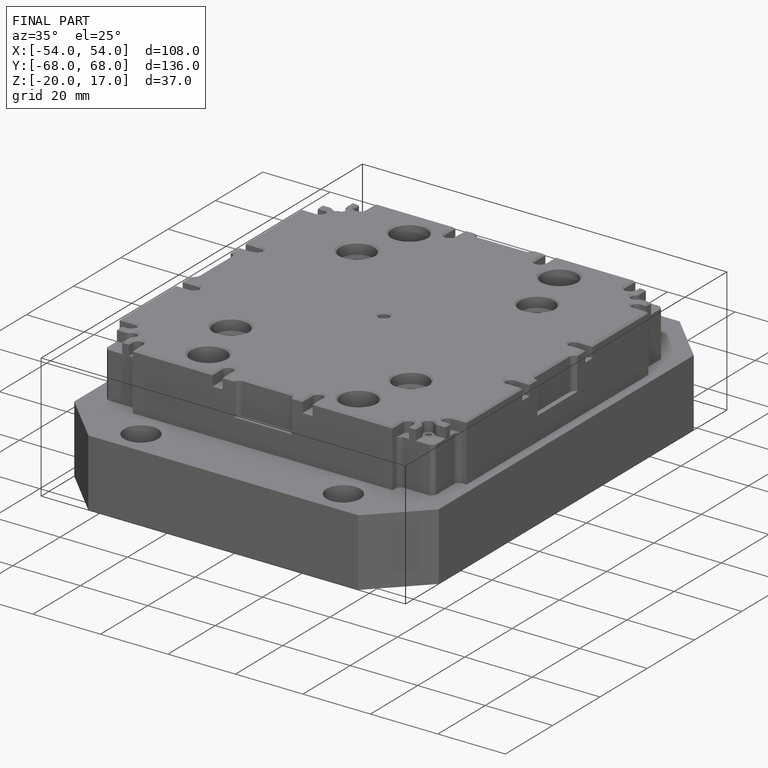
[diagram: finished part — iso view with bounding-box wireframe]
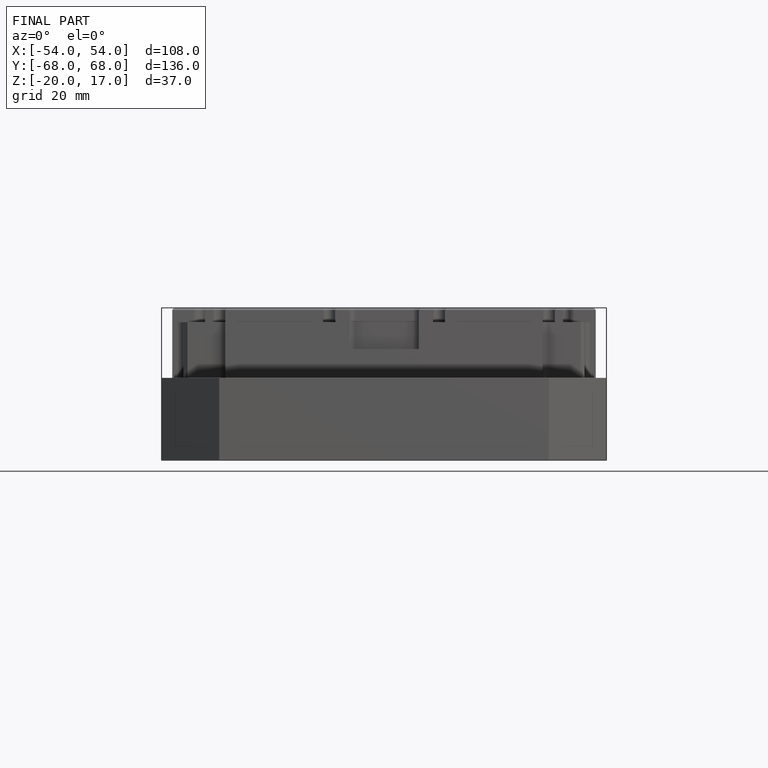
[diagram: finished part — front view with bounding-box wireframe]
